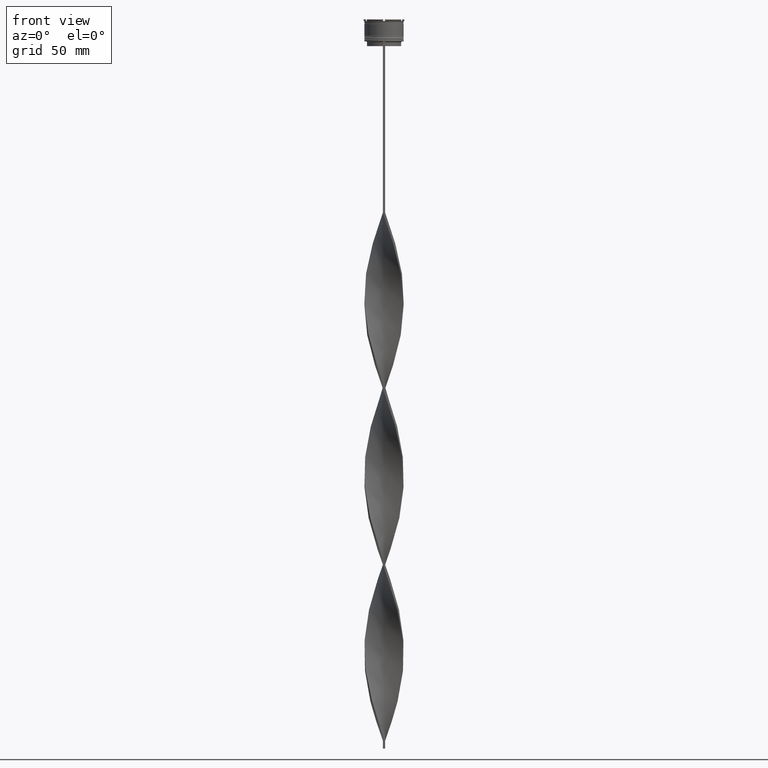
[diagram: clean part render]
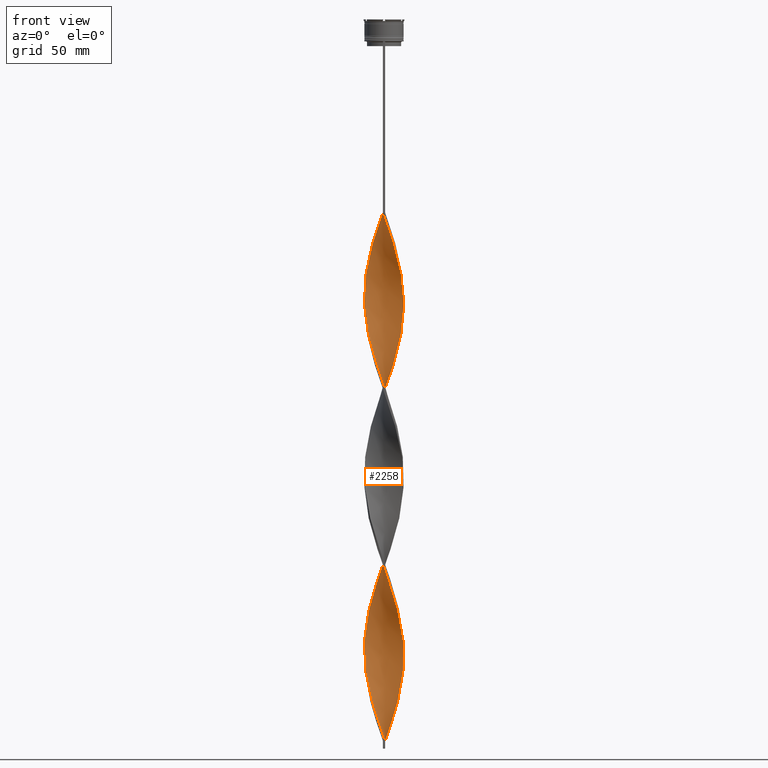
[diagram: same view with one face highlighted and labeled with its STEP entity id]
A machine part, front view. The second image highlights one B-rep face of the part: STEP entity #2258.
In plain terms, the highlighted face is a freeform B-spline surface patch.
Its self-contained STEP definition (entity closure, byte-faithful):
#5 = CARTESIAN_POINT ( 'NONE',  ( -0.1440176444849642912, -12.55364105866909874, -232.4545454545454390 ) ) ;
#24 = EDGE_CURVE ( 'NONE', #2962, #3395, #1316, .T. ) ;
#25 = CARTESIAN_POINT ( 'NONE',  ( 9.393097386316817676, -8.329727870884727992, -262.9999999999999432 ) ) ;
#33 = CARTESIAN_POINT ( 'NONE',  ( -10.48293307345756809, 6.908166116216014174, -380.0909090909090651 ) ) ;
#54 = CARTESIAN_POINT ( 'NONE',  ( -11.78236275255014576, -4.241276690728743581, -189.1818181818181870 ) ) ;
#57 = CARTESIAN_POINT ( 'NONE',  ( -9.581720387053803023, 8.112045323846697187, -268.0909090909090651 ) ) ;
#60 = CARTESIAN_POINT ( 'NONE',  ( -0.7499999999999997780, -12.50000000000000000, -123.0000000000000000 ) ) ;
#65 = CARTESIAN_POINT ( 'NONE',  ( -5.345974020927156900, -11.35936647350535367, -441.1818181818181301 ) ) ;
#80 = CARTESIAN_POINT ( 'NONE',  ( -3.398585475168563352, 12.08570484828248759, -130.6363636363636545 ) ) ;
#85 = CARTESIAN_POINT ( 'NONE',  ( -0.7499999999999997780, 12.50000000000000000, -123.0000000000000000 ) ) ;
#98 = CARTESIAN_POINT ( 'NONE',  ( 5.345974020927152459, -11.35936647350535722, -140.8181818181818130 ) ) ;
#102 = CARTESIAN_POINT ( 'NONE',  ( -12.00455592986043030, 3.674953311088231533, -390.2727272727272521 ) ) ;
#113 = CARTESIAN_POINT ( 'NONE',  ( -8.329727870884727992, -9.393097386316815900, -207.0000000000000284 ) ) ;
#121 = CARTESIAN_POINT ( 'NONE',  ( -9.393097386316817676, 8.329727870884727992, -374.9999999999999432 ) ) ;
#126 = CARTESIAN_POINT ( 'NONE',  ( -9.393097386316817676, -8.329727870884724439, -319.0000000000000000 ) ) ;
#128 = CARTESIAN_POINT ( 'NONE',  ( -12.55364105866909874, -0.1440176444849660120, -293.5454545454544473 ) ) ;
#136 = CARTESIAN_POINT ( 'NONE',  ( 8.752571355081759208, 8.955724128969263731, -209.5454545454545325 ) ) ;
#151 = CARTESIAN_POINT ( 'NONE',  ( 12.26603189480669798, 2.521301559826760297, -296.0909090909090651 ) ) ;
#155 = CARTESIAN_POINT ( 'NONE',  ( -8.752571355081753879, -8.955724128969267284, -321.5454545454545610 ) ) ;
#156 = CARTESIAN_POINT ( 'NONE',  ( 3.674953311088230645, -12.00455592986043030, -135.7272727272726911 ) ) ;
#162 = CARTESIAN_POINT ( 'NONE',  ( 11.68196120168289553, 4.510463666007690442, -194.2727272727272521 ) ) ;
#172 = CARTESIAN_POINT ( 'NONE',  ( -11.78236275255014576, -4.241276690728743581, -413.1818181818181870 ) ) ;
#176 = CARTESIAN_POINT ( 'NONE',  ( 9.938015229887191992, 7.618946993550368418, -204.4545454545454390 ) ) ;
#183 = CARTESIAN_POINT ( 'NONE',  ( 8.112045323846697187, 9.581720387053803023, -212.0909090909090935 ) ) ;
#191 = CARTESIAN_POINT ( 'NONE',  ( 3.674953311088230645, -12.00455592986043030, -135.7272727272726911 ) ) ;
#195 = CARTESIAN_POINT ( 'NONE',  ( -6.127070068571586425, -10.92114977348146354, -438.6363636363636829 ) ) ;
#196 = CARTESIAN_POINT ( 'NONE',  ( 0.7500000000000013323, 12.50000000000000000, -459.0000000000000000 ) ) ;
#200 = CARTESIAN_POINT ( 'NONE',  ( -7.618946993550368418, 9.938015229887193769, -260.4545454545454959 ) ) ;
#212 = CARTESIAN_POINT ( 'NONE',  ( 12.20496158781229035, -2.802037230306998694, -280.8181818181818699 ) ) ;
#224 = CARTESIAN_POINT ( 'NONE',  ( 12.50000000000000000, -0.7500000000000005551, -403.0000000000000000 ) ) ;
#227 = CARTESIAN_POINT ( 'NONE',  ( -2.802037230306994697, 12.20496158781229035, -245.1818181818181870 ) ) ;
#228 = CARTESIAN_POINT ( 'NONE',  ( -12.08570484828248581, 3.398585475168569570, -283.3636363636362603 ) ) ;
#235 = CARTESIAN_POINT ( 'NONE',  ( 6.908166116216016839, 10.48293307345756453, -324.0909090909090651 ) ) ;
#246 = CARTESIAN_POINT ( 'NONE',  ( 12.00455592986043030, 3.674953311088229757, -415.7272727272726911 ) ) ;
#248 = CARTESIAN_POINT ( 'NONE',  ( -10.48293307345757164, -6.908166116216012398, -313.9090909090908212 ) ) ;
#257 = CARTESIAN_POINT ( 'NONE',  ( 5.874911659039470990, -11.05883868218006505, -250.2727272727273089 ) ) ;
#263 = CARTESIAN_POINT ( 'NONE',  ( -2.521301559826765626, -12.26603189480669442, -341.9090909090909349 ) ) ;
#268 = CARTESIAN_POINT ( 'NONE',  ( -7.388950367818353904, -10.11018854729806726, -326.6363636363636260 ) ) ;
#278 = CARTESIAN_POINT ( 'NONE',  ( -6.908166116216015062, -10.48293307345756631, -212.0909090909090935 ) ) ;
#292 = CARTESIAN_POINT ( 'NONE',  ( 12.50000000000000000, -0.7500000000000005551, -403.0000000000000000 ) ) ;
#301 = CARTESIAN_POINT ( 'NONE',  ( 1.644017644484960572, -12.44635894133090126, -237.5454545454545325 ) ) ;
#307 = EDGE_LOOP ( 'NONE', ( #3531, #3303, #2238, #1678 ) ) ;
#309 = CARTESIAN_POINT ( 'NONE',  ( 10.48293307345756809, 6.908166116216014174, -425.9090909090908212 ) ) ;
#312 = CARTESIAN_POINT ( 'NONE',  ( 11.68196120168289553, 4.510463666007690442, -418.2727272727273089 ) ) ;
#338 = CARTESIAN_POINT ( 'NONE',  ( -4.241276690728745358, -11.78236275255014576, -336.8181818181818130 ) ) ;
#366 = CARTESIAN_POINT ( 'NONE',  ( 12.40536724576414684, -1.929121149525772516, -283.3636363636362603 ) ) ;
#387 = CARTESIAN_POINT ( 'NONE',  ( -12.20496158781229035, 2.802037230306999582, -168.8181818181818130 ) ) ;
#390 = CARTESIAN_POINT ( 'NONE',  ( -10.92114977348146532, -6.127070068571578432, -311.3636363636363740 ) ) ;
#396 = CARTESIAN_POINT ( 'NONE',  ( -12.55364105866909874, 0.1440176444849634030, -400.4545454545453822 ) ) ;
#408 = CARTESIAN_POINT ( 'NONE',  ( -9.938015229887191992, 7.618946993550370195, -153.5454545454545325 ) ) ;
#416 = CARTESIAN_POINT ( 'NONE',  ( -11.68196120168289553, 4.510463666007692218, -387.7272727272727479 ) ) ;
#433 = CARTESIAN_POINT ( 'NONE',  ( -4.241276690728743581, 11.78236275255014576, -133.1818181818181870 ) ) ;
#436 = CARTESIAN_POINT ( 'NONE',  ( -11.78236275255014576, 4.241276690728744470, -280.8181818181818699 ) ) ;
#460 = CARTESIAN_POINT ( 'NONE',  ( -10.92114977348146354, 6.127070068571585537, -382.6363636363636829 ) ) ;
#470 = VERTEX_POINT ( 'NONE', #4080 ) ;
#474 = CARTESIAN_POINT ( 'NONE',  ( -6.665855411790014173, 10.63865670754232795, -140.8181818181818130 ) ) ;
#480 = CARTESIAN_POINT ( 'NONE',  ( 10.11018854729807259, 7.388950367818349463, -311.3636363636363740 ) ) ;
#483 = CARTESIAN_POINT ( 'NONE',  ( -8.329727870884724439, 9.393097386316817676, -262.9999999999999432 ) ) ;
#503 = CARTESIAN_POINT ( 'NONE',  ( -10.11018854729806549, -7.388950367818355680, -423.3636363636363740 ) ) ;
#509 = CARTESIAN_POINT ( 'NONE',  ( -1.929121149525763634, 12.40536724576414862, -242.6363636363635976 ) ) ;
#516 = CARTESIAN_POINT ( 'NONE',  ( 4.241276690728743581, 11.78236275255014576, -224.8181818181818130 ) ) ;
#526 = CARTESIAN_POINT ( 'NONE',  ( 0.1440176444849632920, -12.55364105866909874, -125.5454545454545467 ) ) ;
#532 = CARTESIAN_POINT ( 'NONE',  ( -11.35936647350535722, 5.345974020927153347, -385.1818181818180733 ) ) ;
#537 = CARTESIAN_POINT ( 'NONE',  ( -6.908166116216012398, 10.48293307345756809, -257.9090909090909349 ) ) ;
#538 = CARTESIAN_POINT ( 'NONE',  ( 9.393097386316817676, 8.329727870884726215, -207.0000000000000284 ) ) ;
#546 = CARTESIAN_POINT ( 'NONE',  ( -12.55364105866909874, 0.1440176444849634030, -176.4545454545454390 ) ) ;
#550 = CARTESIAN_POINT ( 'NONE',  ( 1.929121149525766521, -12.40536724576414862, -130.6363636363636260 ) ) ;
#554 = CARTESIAN_POINT ( 'NONE',  ( -5.345974020927156900, -11.35936647350535367, -441.1818181818181301 ) ) ;
#558 = CARTESIAN_POINT ( 'NONE',  ( -6.908166116216012398, 10.48293307345756986, -257.9090909090909349 ) ) ;
#569 = CARTESIAN_POINT ( 'NONE',  ( -0.1440176444849642912, -12.55364105866909874, -232.4545454545454390 ) ) ;
#576 = CARTESIAN_POINT ( 'NONE',  ( 4.241276690728743581, 11.78236275255014576, -448.8181818181818130 ) ) ;
#581 = CARTESIAN_POINT ( 'NONE',  ( 4.241276690728743581, 11.78236275255014576, -224.8181818181818130 ) ) ;
#595 = CARTESIAN_POINT ( 'NONE',  ( -4.241276690728743581, 11.78236275255014576, -357.1818181818181301 ) ) ;
#609 = CARTESIAN_POINT ( 'NONE',  ( 4.510463666007691330, -11.68196120168289553, -362.2727272727273089 ) ) ;
#616 = CARTESIAN_POINT ( 'NONE',  ( 12.40536724576414684, -1.929121149525772516, -283.3636363636363171 ) ) ;
#624 = CARTESIAN_POINT ( 'NONE',  ( 11.78236275255014576, -4.241276690728745358, -392.8181818181818699 ) ) ;
#626 = CARTESIAN_POINT ( 'NONE',  ( 5.083967906288923366, 11.47902065681780215, -446.2727272727271952 ) ) ;
#634 = CARTESIAN_POINT ( 'NONE',  ( -1.036569397005365323, -12.47950415221662190, -229.9090909090909065 ) ) ;
#645 = CARTESIAN_POINT ( 'NONE',  ( -12.00455592986043030, -3.674953311088230645, -303.7272727272727479 ) ) ;
#658 = CARTESIAN_POINT ( 'NONE',  ( 2.802037230306999582, 12.20496158781229035, -336.8181818181818130 ) ) ;
#672 = CARTESIAN_POINT ( 'NONE',  ( 1.036569397005364879, -12.47950415221662190, -352.0909090909091219 ) ) ;
#673 = CARTESIAN_POINT ( 'NONE',  ( 7.388950367818358345, 10.11018854729806549, -438.6363636363636829 ) ) ;
#685 = CARTESIAN_POINT ( 'NONE',  ( -12.50000000000000000, -0.7499999999999990008, -403.0000000000000000 ) ) ;
#694 = CARTESIAN_POINT ( 'NONE',  ( 10.63865670754232795, -6.665855411790015950, -385.1818181818180733 ) ) ;
#697 = CARTESIAN_POINT ( 'NONE',  ( -12.47950415221662368, -1.036569397005361548, -296.0909090909090651 ) ) ;
#712 = CARTESIAN_POINT ( 'NONE',  ( -1.929121149525763634, 12.40536724576414862, -242.6363636363636260 ) ) ;
#717 = CARTESIAN_POINT ( 'NONE',  ( 1.644017644484960572, -12.44635894133090126, -237.5454545454545325 ) ) ;
#729 = CARTESIAN_POINT ( 'NONE',  ( -1.929121149525766521, -12.40536724576414862, -451.3636363636364308 ) ) ;
#744 = CARTESIAN_POINT ( 'NONE',  ( -12.55364105866909874, 0.1440176444849634030, -176.4545454545454390 ) ) ;
#748 = CARTESIAN_POINT ( 'NONE',  ( -11.68196120168289731, -4.510463666007686889, -306.2727272727272521 ) ) ;
#755 = CARTESIAN_POINT ( 'NONE',  ( -12.00455592986043030, 3.674953311088231533, -390.2727272727272521 ) ) ;
#770 = CARTESIAN_POINT ( 'NONE',  ( -12.50000000000000000, -0.7499999999999990008, -179.0000000000000000 ) ) ;
#784 = VERTEX_POINT ( 'NONE', #85 ) ;
#790 = CARTESIAN_POINT ( 'NONE',  ( 8.752571355081755655, -8.955724128969267284, -260.4545454545454959 ) ) ;
#794 = CARTESIAN_POINT ( 'NONE',  ( -12.00455592986043030, -3.674953311088230645, -303.7272727272727479 ) ) ;
#804 = CARTESIAN_POINT ( 'NONE',  ( -10.11018854729806549, -7.388950367818355680, -199.3636363636363455 ) ) ;
#807 = CARTESIAN_POINT ( 'NONE',  ( 2.802037230306998694, -12.20496158781229035, -133.1818181818181870 ) ) ;
#815 = CARTESIAN_POINT ( 'NONE',  ( -1.036569397005365323, -12.47950415221662190, -229.9090909090909065 ) ) ;
#823 = CARTESIAN_POINT ( 'NONE',  ( 10.63865670754232795, -6.665855411790015062, -161.1818181818181870 ) ) ;
#832 = CARTESIAN_POINT ( 'NONE',  ( -2.521301559826763405, 12.26603189480669620, -128.0909090909090935 ) ) ;
#838 = CARTESIAN_POINT ( 'NONE',  ( 4.510463666007692218, 11.68196120168289553, -331.7272727272727479 ) ) ;
#839 = CARTESIAN_POINT ( 'NONE',  ( 0.7499999999999983347, -12.50000000000000000, -459.0000000000000000 ) ) ;
#841 = CARTESIAN_POINT ( 'NONE',  ( -10.63865670754232440, 6.665855411790017726, -273.1818181818181870 ) ) ;
#853 = CARTESIAN_POINT ( 'NONE',  ( -11.47902065681779860, -5.083967906288924254, -191.7272727272727479 ) ) ;
#859 = CARTESIAN_POINT ( 'NONE',  ( 1.036569397005367099, 12.47950415221662368, -341.9090909090909349 ) ) ;
#862 = CARTESIAN_POINT ( 'NONE',  ( 11.47902065681779860, -5.083967906288926031, -166.2727272727272236 ) ) ;
#866 = CARTESIAN_POINT ( 'NONE',  ( 9.938015229887191992, 7.618946993550368418, -204.4545454545454390 ) ) ;
#882 = CARTESIAN_POINT ( 'NONE',  ( 11.78236275255014576, 4.241276690728739140, -301.1818181818182438 ) ) ;
#887 = CARTESIAN_POINT ( 'NONE',  ( -11.05883868218006505, 5.874911659039469214, -275.7272727272726911 ) ) ;
#894 = CARTESIAN_POINT ( 'NONE',  ( 10.48293307345756809, 6.908166116216014174, -201.9090909090909065 ) ) ;
#900 = CARTESIAN_POINT ( 'NONE',  ( -12.00455592986043030, 3.674953311088231533, -166.2727272727272521 ) ) ;
#909 = CARTESIAN_POINT ( 'NONE',  ( -10.63865670754232617, -6.665855411790015950, -420.8181818181818130 ) ) ;
#913 = CARTESIAN_POINT ( 'NONE',  ( 5.083967906288923366, 11.47902065681780215, -222.2727272727272805 ) ) ;
#923 = CARTESIAN_POINT ( 'NONE',  ( 10.92114977348146532, -6.127070068571582873, -270.6363636363636829 ) ) ;
#927 = CARTESIAN_POINT ( 'NONE',  ( 7.618946993550366642, 9.938015229887193769, -321.5454545454545610 ) ) ;
#932 = CARTESIAN_POINT ( 'NONE',  ( 6.127070068571584649, -10.92114977348146354, -143.3636363636363740 ) ) ;
#941 = CARTESIAN_POINT ( 'NONE',  ( 1.036569397005367099, 12.47950415221662368, -341.9090909090909349 ) ) ;
#953 = CARTESIAN_POINT ( 'NONE',  ( 12.40536724576414862, 1.929121149525767409, -410.6363636363636260 ) ) ;
#966 = CARTESIAN_POINT ( 'NONE',  ( 11.05883868218006683, 5.874911659039464773, -306.2727272727272521 ) ) ;
#976 = CARTESIAN_POINT ( 'NONE',  ( 9.938015229887191992, 7.618946993550368418, -428.4545454545454959 ) ) ;
#980 = CARTESIAN_POINT ( 'NONE',  ( 11.05883868218006505, -5.874911659039470102, -387.7272727272727479 ) ) ;
#989 = CARTESIAN_POINT ( 'NONE',  ( 5.083967906288926031, -11.47902065681779860, -247.7272727272727195 ) ) ;
#995 = CARTESIAN_POINT ( 'NONE',  ( -0.1440176444849612103, 12.55364105866909874, -237.5454545454545325 ) ) ;
#1000 = CARTESIAN_POINT ( 'NONE',  ( 8.329727870884727992, -9.393097386316817676, -374.9999999999999432 ) ) ;
#1009 = CARTESIAN_POINT ( 'NONE',  ( -6.127070068571586425, -10.92114977348146354, -214.6363636363636260 ) ) ;
#1018 = CARTESIAN_POINT ( 'NONE',  ( 3.398585475168563796, 12.08570484828248759, -451.3636363636364308 ) ) ;
#1021 = CARTESIAN_POINT ( 'NONE',  ( 9.938015229887191992, 7.618946993550368418, -428.4545454545454959 ) ) ;
#1034 = CARTESIAN_POINT ( 'NONE',  ( -11.05883868218006505, -5.874911659039468326, -418.2727272727273089 ) ) ;
#1048 = CARTESIAN_POINT ( 'NONE',  ( 5.345974020927152459, -11.35936647350535722, -364.8181818181818130 ) ) ;
#1057 = CARTESIAN_POINT ( 'NONE',  ( -4.510463666007690442, -11.68196120168289553, -443.7272727272727479 ) ) ;
#1071 = CARTESIAN_POINT ( 'NONE',  ( 0.7499999999999983347, -12.50000000000000000, -235.0000000000000000 ) ) ;
#1091 = CARTESIAN_POINT ( 'NONE',  ( 6.665855411790015950, -10.63865670754232795, -252.8181818181817562 ) ) ;
#1101 = CARTESIAN_POINT ( 'NONE',  ( -12.20496158781229035, 2.802037230306999582, -392.8181818181818699 ) ) ;
#1117 = CARTESIAN_POINT ( 'NONE',  ( -11.05883868218006505, -5.874911659039468326, -194.2727272727272521 ) ) ;
#1140 = CARTESIAN_POINT ( 'NONE',  ( -2.521301559826763405, 12.26603189480669620, -128.0909090909090935 ) ) ;
#1143 = CARTESIAN_POINT ( 'NONE',  ( -8.955724128969263731, 8.752571355081759208, -265.5454545454545041 ) ) ;
#1144 = CARTESIAN_POINT ( 'NONE',  ( 1.929121149525766521, -12.40536724576414862, -130.6363636363636545 ) ) ;
#1163 = CARTESIAN_POINT ( 'NONE',  ( -8.329727870884727992, -9.393097386316815900, -207.0000000000000284 ) ) ;
#1178 = CARTESIAN_POINT ( 'NONE',  ( -9.938015229887191992, 7.618946993550370195, -153.5454545454545325 ) ) ;
#1187 = CARTESIAN_POINT ( 'NONE',  ( 1.929121149525773404, 12.40536724576414684, -339.3636363636362603 ) ) ;
#1192 = CARTESIAN_POINT ( 'NONE',  ( -9.581720387053803023, 8.112045323846698963, -268.0909090909090082 ) ) ;
#1214 = CARTESIAN_POINT ( 'NONE',  ( 2.802037230306999582, 12.20496158781229035, -336.8181818181818130 ) ) ;
#1218 = CARTESIAN_POINT ( 'NONE',  ( 10.92114977348146354, 6.127070068571584649, -199.3636363636363455 ) ) ;
#1224 = CARTESIAN_POINT ( 'NONE',  ( 12.20496158781229035, 2.802037230306998694, -189.1818181818181870 ) ) ;
#1236 = CARTESIAN_POINT ( 'NONE',  ( 12.08570484828248759, 3.398585475168565129, -298.6363636363635692 ) ) ;
#1240 = CARTESIAN_POINT ( 'NONE',  ( 10.63865670754232795, -6.665855411790015950, -161.1818181818181870 ) ) ;
#1251 = CARTESIAN_POINT ( 'NONE',  ( -8.112045323846695410, 9.581720387053804799, -145.9090909090909065 ) ) ;
#1258 = CARTESIAN_POINT ( 'NONE',  ( -12.08570484828248581, 3.398585475168570014, -283.3636363636363171 ) ) ;
#1261 = CARTESIAN_POINT ( 'NONE',  ( -8.112045323846697187, 9.581720387053804799, -369.9090909090908781 ) ) ;
#1268 = CARTESIAN_POINT ( 'NONE',  ( 6.908166116216012398, -10.48293307345756986, -145.9090909090909065 ) ) ;
#1279 = CARTESIAN_POINT ( 'NONE',  ( -11.78236275255014576, -4.241276690728743581, -189.1818181818181870 ) ) ;
#1287 = CARTESIAN_POINT ( 'NONE',  ( 9.581720387053806576, 8.112045323846697187, -313.9090909090908212 ) ) ;
#1291 = CARTESIAN_POINT ( 'NONE',  ( -8.955724128969263731, 8.752571355081759208, -265.5454545454545041 ) ) ;
#1302 = CARTESIAN_POINT ( 'NONE',  ( 7.618946993550366642, 9.938015229887193769, -321.5454545454545610 ) ) ;
#1312 = CARTESIAN_POINT ( 'NONE',  ( 11.78236275255014576, -4.241276690728745358, -392.8181818181818699 ) ) ;
#1316 =( BOUNDED_CURVE ( )  B_SPLINE_CURVE ( 2, ( #3726, #526, #2336, #550, #807, #191, #2242, #98, #1324, #3982, #4501, #2809, #3975, #1850, #2951, #823, #2781, #1332, #4180, #4156, #4204, #3843, #4425, #4098, #2653, #3393, #1224, #2674, #162, #4071, #1602, #894, #866, #3032, #136, #183, #1581, #2329, #4447, #3742, #516, #2301, #3718, #1957, #1745, #995, #4267, #712, #227, #2148, #2520, #2251, #1897, #537, #1921, #3269, #1143, #57, #2573, #3998, #2221, #3638, #436, #1258, #2574, #3999, #2199, #1470, #697, #2521, #3944, #794, #748, #2177, #390, #1824, #1922, #126, #155, #3023, #1430, #4272, #3916, #2142, #3561, #1799, #263, #1698, #3129, #1357, #672, #4605, #2123, #2833, #2798, #3932, #3985, #2759, #1681, #1701, #2800, #3092, #3865, #2409, #4533, #3515, #624, #2755, #2056, #3430, #224, #3800, #3775, #3451, #3111, #246, #2443, #1330, #4178, #309, #976, #4154, #4222, #2101, #2424, #2779, #2014, #3468, #576, #1018, #4133, #4514, #4582 ),
 .UNSPECIFIED., .F., .T. ) 
 B_SPLINE_CURVE_WITH_KNOTS ( ( 3, 2, 2, 2, 2, 2, 2, 2, 2, 2, 2, 2, 2, 2, 2, 2, 2, 2, 2, 2, 2, 2, 2, 2, 2, 2, 2, 2, 2, 2, 2, 2, 2, 2, 2, 2, 2, 2, 2, 2, 2, 2, 2, 2, 2, 2, 2, 2, 2, 2, 2, 2, 2, 2, 2, 2, 2, 2, 2, 2, 2, 2, 2, 2, 2, 2, 3 ),
 ( 0.000000000000000000, 0.01136363636363636222, 0.02272727272727272443, 0.03409090909090908839, 0.04545454545454544887, 0.05681818181818181629, 0.06818181818181817677, 0.07954545454545454419, 0.09090909090909089774, 0.1022727272727272790, 0.1136363636363636326, 0.1250000000000000000, 0.1363636363636363535, 0.1477272727272727348, 0.1590909090909090884, 0.1704545454545454419, 0.1818181818181817955, 0.1931818181818182045, 0.2045454545454545581, 0.2159090909090909116, 0.2272727272727272652, 0.2386363636363636465, 0.2500000000000000000, 0.2613636363636363535, 0.2727272727272727071, 0.2840909090909091161, 0.2954545454545454697, 0.3068181818181818232, 0.3181818181818181768, 0.3295454545454545303, 0.3409090909090908839, 0.3522727272727272929, 0.3636363636363635909, 0.3750000000000000000, 0.3863636363636364091, 0.3977272727272727071, 0.4090909090909091161, 0.4204545454545454697, 0.4318181818181818232, 0.4431818181818181768, 0.4545454545454545303, 0.4659090909090908839, 0.4772727272727272929, 0.4886363636363635909, 0.5000000000000000000, 0.5113636363636363535, 0.5227272727272727071, 0.5340909090909090606, 0.5454545454545454142, 0.5568181818181817677, 0.5681818181818182323, 0.5795454545454545858, 0.5909090909090909394, 0.6022727272727272929, 0.6136363636363636465, 0.6250000000000000000, 0.6363636363636363535, 0.6477272727272727071, 0.6590909090909090606, 0.6704545454545454142, 0.6818181818181817677, 0.6931818181818182323, 0.7045454545454545858, 0.7159090909090909394, 0.7272727272727271819, 0.7386363636363636465, 0.7500000000000000000 ),
 .UNSPECIFIED. ) 
 CURVE ( )  GEOMETRIC_REPRESENTATION_ITEM ( )  RATIONAL_B_SPLINE_CURVE ( ( 1.000000000000000000, 0.9974521146102535152, 1.000000000000000000, 0.9974521146102535152, 1.000000000000000000, 0.9974521146102535152, 1.000000000000000000, 0.9974521146102535152, 1.000000000000000000, 0.9974521146102535152, 1.000000000000000000, 0.9974521146102535152, 1.000000000000000000, 0.9974521146102535152, 1.000000000000000000, 0.9974521146102535152, 1.000000000000000000, 0.9974521146102535152, 1.000000000000000000, 0.9974521146102535152, 1.000000000000000000, 0.9974521146102535152, 1.000000000000000000, 0.9974521146102535152, 1.000000000000000000, 0.9974521146102535152, 1.000000000000000000, 0.9974521146102535152, 1.000000000000000000, 0.9974521146102535152, 1.000000000000000000, 0.9974521146102535152, 1.000000000000000000, 0.9974521146102535152, 1.000000000000000000, 0.9974521146102535152, 1.000000000000000000, 0.9974521146102535152, 1.000000000000000000, 0.9974521146102535152, 1.000000000000000000, 0.9974521146102535152, 1.000000000000000000, 0.9974521146102535152, 1.000000000000000000, 0.9974521146102535152, 1.000000000000000000, 0.9974521146102535152, 1.000000000000000000, 0.9974521146102535152, 1.000000000000000000, 0.9974521146102535152, 1.000000000000000000, 0.9974521146102535152, 1.000000000000000000, 0.9974521146102535152, 1.000000000000000000, 0.9974521146102535152, 1.000000000000000000, 0.9974521146102535152, 1.000000000000000000, 0.9974521146102535152, 1.000000000000000000, 0.9974521146102535152, 1.000000000000000000, 0.9974521146102535152, 1.000000000000000000, 0.9974521146102535152, 1.000000000000000000, 0.9974521146102535152, 1.000000000000000000, 0.9974521146102535152, 1.000000000000000000, 0.9974521146102535152, 1.000000000000000000, 0.9974521146102535152, 1.000000000000000000, 0.9974521146102535152, 1.000000000000000000, 0.9974521146102535152, 1.000000000000000000, 0.9974521146102535152, 1.000000000000000000, 0.9974521146102535152, 1.000000000000000000, 0.9974521146102535152, 1.000000000000000000, 0.9974521146102535152, 1.000000000000000000, 0.9974521146102535152, 1.000000000000000000, 0.9974521146102535152, 1.000000000000000000, 0.9974521146102535152, 1.000000000000000000, 0.9974521146102535152, 1.000000000000000000, 0.9974521146102535152, 1.000000000000000000, 0.9974521146102535152, 1.000000000000000000, 0.9974521146102535152, 1.000000000000000000, 0.9974521146102535152, 1.000000000000000000, 0.9974521146102535152, 1.000000000000000000, 0.9974521146102535152, 1.000000000000000000, 0.9974521146102535152, 1.000000000000000000, 0.9974521146102535152, 1.000000000000000000, 0.9974521146102535152, 1.000000000000000000, 0.9974521146102535152, 1.000000000000000000, 0.9974521146102535152, 1.000000000000000000, 0.9974521146102535152, 1.000000000000000000, 0.9974521146102535152, 1.000000000000000000, 0.9974521146102535152, 1.000000000000000000, 0.9974521146102535152, 1.000000000000000000, 0.9974521146102535152, 1.000000000000000000, 0.9974521146102535152, 1.000000000000000000, 0.9974521146102535152, 1.000000000000000000 ) ) 
 REPRESENTATION_ITEM ( '' )  );
#1321 = CARTESIAN_POINT ( 'NONE',  ( -8.112045323846695410, 9.581720387053804799, -369.9090909090909349 ) ) ;
#1324 = CARTESIAN_POINT ( 'NONE',  ( 6.127070068571584649, -10.92114977348146354, -143.3636363636363740 ) ) ;
#1330 = CARTESIAN_POINT ( 'NONE',  ( 11.35936647350535544, 5.345974020927153347, -420.8181818181818130 ) ) ;
#1332 = CARTESIAN_POINT ( 'NONE',  ( 11.47902065681779860, -5.083967906288926031, -166.2727272727272521 ) ) ;
#1336 = CARTESIAN_POINT ( 'NONE',  ( 12.20496158781229035, 2.802037230306998694, -413.1818181818181870 ) ) ;
#1348 = CARTESIAN_POINT ( 'NONE',  ( -1.929121149525766521, -12.40536724576414862, -227.3636363636363455 ) ) ;
#1357 = CARTESIAN_POINT ( 'NONE',  ( 0.1440176444849632920, -12.55364105866909874, -349.5454545454545610 ) ) ;
#1362 = CARTESIAN_POINT ( 'NONE',  ( -5.083967906288929584, -11.47902065681779682, -334.2727272727272521 ) ) ;
#1373 = CARTESIAN_POINT ( 'NONE',  ( -2.521301559826763405, 12.26603189480669620, -352.0909090909091219 ) ) ;
#1385 = CARTESIAN_POINT ( 'NONE',  ( 9.393097386316817676, 8.329727870884726215, -430.9999999999999432 ) ) ;
#1394 = CARTESIAN_POINT ( 'NONE',  ( 9.393097386316817676, -8.329727870884727992, -262.9999999999999432 ) ) ;
#1404 = CARTESIAN_POINT ( 'NONE',  ( 12.00455592986043030, 3.674953311088229757, -415.7272727272726911 ) ) ;
#1430 = CARTESIAN_POINT ( 'NONE',  ( -7.388950367818353904, -10.11018854729806726, -326.6363636363636260 ) ) ;
#1431 = CARTESIAN_POINT ( 'NONE',  ( -12.26603189480669798, -2.521301559826762073, -184.0909090909090935 ) ) ;
#1450 = CARTESIAN_POINT ( 'NONE',  ( -6.127070068571586425, -10.92114977348146354, -214.6363636363636260 ) ) ;
#1459 = CARTESIAN_POINT ( 'NONE',  ( -9.938015229887191992, 7.618946993550370195, -377.5454545454545610 ) ) ;
#1467 = CARTESIAN_POINT ( 'NONE',  ( 5.874911659039470990, -11.05883868218006505, -250.2727272727273089 ) ) ;
#1470 = CARTESIAN_POINT ( 'NONE',  ( -12.55364105866909874, -0.1440176444849660120, -293.5454545454545041 ) ) ;
#1497 = CARTESIAN_POINT ( 'NONE',  ( -3.674953311088228869, -12.00455592986043030, -222.2727272727272805 ) ) ;
#1501 = CARTESIAN_POINT ( 'NONE',  ( 0.1440176444849632920, -12.55364105866909874, -125.5454545454545467 ) ) ;
#1519 = CARTESIAN_POINT ( 'NONE',  ( -5.345974020927156900, -11.35936647350535367, -217.1818181818181586 ) ) ;
#1533 = CARTESIAN_POINT ( 'NONE',  ( -0.7499999999999997780, 12.50000000000000000, -123.0000000000000000 ) ) ;
#1542 = CARTESIAN_POINT ( 'NONE',  ( -12.40536724576414862, 1.929121149525765411, -395.3636363636362603 ) ) ;
#1557 = CARTESIAN_POINT ( 'NONE',  ( -7.618946993550371971, -9.938015229887190216, -209.5454545454545325 ) ) ;
#1568 = CARTESIAN_POINT ( 'NONE',  ( -7.618946993550371971, -9.938015229887190216, -433.5454545454545610 ) ) ;
#1573 = CARTESIAN_POINT ( 'NONE',  ( -3.674953311088231533, 12.00455592986043030, -247.7272727272726911 ) ) ;
#1581 = CARTESIAN_POINT ( 'NONE',  ( 7.388950367818358345, 10.11018854729806549, -214.6363636363636260 ) ) ;
#1593 = CARTESIAN_POINT ( 'NONE',  ( 11.47902065681779860, 5.083967906288924254, -303.7272727272727479 ) ) ;
#1597 = CARTESIAN_POINT ( 'NONE',  ( 8.955724128969265507, -8.752571355081757432, -153.5454545454545325 ) ) ;
#1602 = CARTESIAN_POINT ( 'NONE',  ( 10.92114977348146354, 6.127070068571584649, -199.3636363636363455 ) ) ;
#1610 = CARTESIAN_POINT ( 'NONE',  ( -7.388950367818355680, 10.11018854729806726, -367.3636363636363740 ) ) ;
#1613 = CARTESIAN_POINT ( 'NONE',  ( 3.398585475168563352, 12.08570484828248759, -227.3636363636363171 ) ) ;
#1625 = CARTESIAN_POINT ( 'NONE',  ( -3.398585475168563796, 12.08570484828248759, -130.6363636363636260 ) ) ;
#1633 = CARTESIAN_POINT ( 'NONE',  ( -4.510463666007690442, -11.68196120168289553, -443.7272727272727479 ) ) ;
#1639 = CARTESIAN_POINT ( 'NONE',  ( 5.345974020927152459, -11.35936647350535722, -140.8181818181818130 ) ) ;
#1653 = CARTESIAN_POINT ( 'NONE',  ( 6.127070068571582873, 10.92114977348146354, -326.6363636363636260 ) ) ;
#1663 = CARTESIAN_POINT ( 'NONE',  ( -12.44635894133090126, 1.644017644484958796, -288.4545454545454390 ) ) ;
#1672 = CARTESIAN_POINT ( 'NONE',  ( 2.521301559826761185, -12.26603189480669798, -240.0909090909090651 ) ) ;
#1678 = ORIENTED_EDGE ( 'NONE', *, *, #24, .F. ) ;
#1681 = CARTESIAN_POINT ( 'NONE',  ( 7.618946993550370195, -9.938015229887191992, -372.4545454545454959 ) ) ;
#1684 = CARTESIAN_POINT ( 'NONE',  ( 12.44635894133090126, -1.644017644484962792, -400.4545454545453822 ) ) ;
#1693 = CARTESIAN_POINT ( 'NONE',  ( 6.665855411790015062, -10.63865670754232795, -252.8181818181817846 ) ) ;
#1698 = CARTESIAN_POINT ( 'NONE',  ( -1.644017644484959684, -12.44635894133090126, -344.4545454545453822 ) ) ;
#1701 = CARTESIAN_POINT ( 'NONE',  ( 8.329727870884727992, -9.393097386316817676, -374.9999999999999432 ) ) ;
#1706 = CARTESIAN_POINT ( 'NONE',  ( -8.112045323846700740, -9.581720387053801247, -324.0909090909090082 ) ) ;
#1718 = CARTESIAN_POINT ( 'NONE',  ( 8.112045323846695410, -9.581720387053804799, -257.9090909090909349 ) ) ;
#1729 = CARTESIAN_POINT ( 'NONE',  ( 11.35936647350535544, 5.345974020927153347, -420.8181818181818130 ) ) ;
#1739 = CARTESIAN_POINT ( 'NONE',  ( 4.241276690728740029, -11.78236275255014576, -245.1818181818181870 ) ) ;
#1745 = CARTESIAN_POINT ( 'NONE',  ( 0.7500000000000013323, 12.50000000000000000, -235.0000000000000000 ) ) ;
#1751 = CARTESIAN_POINT ( 'NONE',  ( 2.521301559826763850, 12.26603189480669620, -453.9090909090909349 ) ) ;
#1762 = CARTESIAN_POINT ( 'NONE',  ( -12.08570484828248759, -3.398585475168564685, -410.6363636363635692 ) ) ;
#1772 = CARTESIAN_POINT ( 'NONE',  ( 11.68196120168289553, -4.510463666007691330, -275.7272727272726911 ) ) ;
#1784 = CARTESIAN_POINT ( 'NONE',  ( 0.7499999999999983347, -12.50000000000000000, -459.0000000000000000 ) ) ;
#1799 = CARTESIAN_POINT ( 'NONE',  ( -3.398585475168570902, -12.08570484828248581, -339.3636363636363171 ) ) ;
#1800 = CARTESIAN_POINT ( 'NONE',  ( -12.40536724576414862, 1.929121149525765411, -171.3636363636363171 ) ) ;
#1819 = EDGE_CURVE ( 'NONE', #784, #470, #2096, .T. ) ;
#1821 = CARTESIAN_POINT ( 'NONE',  ( -8.955724128969265507, -8.752571355081755655, -204.4545454545454390 ) ) ;
#1824 = CARTESIAN_POINT ( 'NONE',  ( -10.48293307345756986, -6.908166116216012398, -313.9090909090908781 ) ) ;
#1829 = CARTESIAN_POINT ( 'NONE',  ( -11.35936647350535722, 5.345974020927153347, -385.1818181818181301 ) ) ;
#1842 = CARTESIAN_POINT ( 'NONE',  ( 2.521301559826761185, -12.26603189480669798, -240.0909090909090651 ) ) ;
#1848 = FACE_OUTER_BOUND ( 'NONE', #307, .T. ) ;
#1850 = CARTESIAN_POINT ( 'NONE',  ( 9.581720387053804799, -8.112045323846697187, -156.0909090909090935 ) ) ;
#1853 = CARTESIAN_POINT ( 'NONE',  ( -0.1440176444849642912, -12.55364105866909874, -456.4545454545454390 ) ) ;
#1872 = CARTESIAN_POINT ( 'NONE',  ( -9.393097386316817676, 8.329727870884727992, -150.9999999999999432 ) ) ;
#1894 = CARTESIAN_POINT ( 'NONE',  ( 12.55364105866909874, -0.1440176444849594894, -288.4545454545454390 ) ) ;
#1897 = CARTESIAN_POINT ( 'NONE',  ( -6.127070068571584649, 10.92114977348146354, -255.3636363636363455 ) ) ;
#1910 = CARTESIAN_POINT ( 'NONE',  ( -12.50000000000000000, -0.7499999999999990008, -179.0000000000000000 ) ) ;
#1917 = CARTESIAN_POINT ( 'NONE',  ( -9.581720387053804799, -8.112045323846698963, -425.9090909090908781 ) ) ;
#1921 = CARTESIAN_POINT ( 'NONE',  ( -7.618946993550368418, 9.938015229887193769, -260.4545454545454959 ) ) ;
#1922 = CARTESIAN_POINT ( 'NONE',  ( -9.938015229887190216, -7.618946993550371971, -316.4545454545454390 ) ) ;
#1923 = CARTESIAN_POINT ( 'NONE',  ( 12.00455592986043030, 3.674953311088229757, -191.7272727272727479 ) ) ;
#1935 = CARTESIAN_POINT ( 'NONE',  ( -11.35936647350535722, 5.345974020927153347, -161.1818181818181870 ) ) ;
#1946 = CARTESIAN_POINT ( 'NONE',  ( 8.329727870884727992, 9.393097386316814124, -319.0000000000000000 ) ) ;
#1951 = CARTESIAN_POINT ( 'NONE',  ( -6.127070068571584649, 10.92114977348146354, -255.3636363636363455 ) ) ;
#1957 = CARTESIAN_POINT ( 'NONE',  ( 1.644017644484963681, 12.44635894133090126, -232.4545454545454390 ) ) ;
#1968 = CARTESIAN_POINT ( 'NONE',  ( -12.44635894133090126, -1.644017644484961460, -405.5454545454545610 ) ) ;
#1972 = CARTESIAN_POINT ( 'NONE',  ( 12.44635894133090126, -1.644017644484962792, -176.4545454545454390 ) ) ;
#1982 = CARTESIAN_POINT ( 'NONE',  ( -12.44635894133090126, -1.644017644484961460, -181.5454545454545041 ) ) ;
#1989 = CARTESIAN_POINT ( 'NONE',  ( 10.63865670754232795, 6.665855411790015062, -308.8181818181817562 ) ) ;
#1993 = CARTESIAN_POINT ( 'NONE',  ( 12.50000000000000000, -0.7500000000000005551, -179.0000000000000000 ) ) ;
#1994 = CARTESIAN_POINT ( 'NONE',  ( 0.7500000000000013323, 12.50000000000000000, -459.0000000000000000 ) ) ;
#2003 = CARTESIAN_POINT ( 'NONE',  ( 7.388950367818355680, -10.11018854729806726, -255.3636363636363455 ) ) ;
#2014 = CARTESIAN_POINT ( 'NONE',  ( 5.874911659039468326, 11.05883868218006505, -443.7272727272727479 ) ) ;
#2017 = CARTESIAN_POINT ( 'NONE',  ( -2.802037230306994697, 12.20496158781229035, -245.1818181818181870 ) ) ;
#2030 = CARTESIAN_POINT ( 'NONE',  ( -7.388950367818355680, 10.11018854729806726, -367.3636363636363740 ) ) ;
#2041 = CARTESIAN_POINT ( 'NONE',  ( 2.802037230306998694, -12.20496158781229035, -357.1818181818181301 ) ) ;
#2048 = CARTESIAN_POINT ( 'NONE',  ( 12.50000000000000000, 0.7499999999999975575, -291.0000000000000568 ) ) ;
#2056 = CARTESIAN_POINT ( 'NONE',  ( 12.26603189480669620, -2.521301559826762961, -397.9090909090909349 ) ) ;
#2058 = CARTESIAN_POINT ( 'NONE',  ( 4.241276690728743581, 11.78236275255014576, -448.8181818181818130 ) ) ;
#2062 = CARTESIAN_POINT ( 'NONE',  ( -0.7499999999999997780, -12.50000000000000000, -123.0000000000000000 ) ) ;
#2066 = CARTESIAN_POINT ( 'NONE',  ( 5.345974020927156900, 11.35936647350535367, -329.1818181818181301 ) ) ;
#2078 = CARTESIAN_POINT ( 'NONE',  ( -11.35936647350535722, -5.345974020927152459, -308.8181818181817562 ) ) ;
#2090 = CARTESIAN_POINT ( 'NONE',  ( -5.874911659039469214, 11.05883868218006505, -362.2727272727273089 ) ) ;
#2096 =( BOUNDED_CURVE ( )  B_SPLINE_CURVE ( 2, ( #1533, #3036, #832, #1625, #2612, #3722, #3352, #474, #4431, #1251, #2961, #2307, #1178, #3056, #4034, #1935, #4103, #900, #2333, #3700, #3747, #546, #1910, #1982, #4479, #2285, #1279, #853, #2707, #3327, #804, #2265, #3679, #113, #1557, #278, #1009, #4194, #3507, #3768, #2727, #1348, #634, #569, #2354, #301, #1672, #3815, #1739, #989, #257, #1693, #2003, #1718, #3103, #1394, #3419, #2791, #923, #3443, #2434, #3172, #212, #616, #3460, #4547, #2048, #2400, #3855, #4147, #4596, #3123, #966, #4125, #2771, #2417, #3832, #4504, #1302, #235, #1653, #2066, #3081, #3149, #658, #3479, #941, #2373, #3788, #4572, #1373, #4526, #595, #4214, #2090, #2745, #2030, #1321, #4168, #2840, #1459, #33, #3212, #1829, #416, #755, #1101, #3576, #2204, #396, #685, #2883, #2485, #1762, #4301, #2531, #1034, #4260, #4236, #2554, #3952, #3189, #2863, #3251, #2181, #65, #1057, #4617, #4282, #729, #4643, #1853, #1784 ),
 .UNSPECIFIED., .F., .T. ) 
 B_SPLINE_CURVE_WITH_KNOTS ( ( 3, 2, 2, 2, 2, 2, 2, 2, 2, 2, 2, 2, 2, 2, 2, 2, 2, 2, 2, 2, 2, 2, 2, 2, 2, 2, 2, 2, 2, 2, 2, 2, 2, 2, 2, 2, 2, 2, 2, 2, 2, 2, 2, 2, 2, 2, 2, 2, 2, 2, 2, 2, 2, 2, 2, 2, 2, 2, 2, 2, 2, 2, 2, 2, 2, 2, 3 ),
 ( 0.000000000000000000, 0.01136363636363636222, 0.02272727272727272443, 0.03409090909090908839, 0.04545454545454544887, 0.05681818181818181629, 0.06818181818181817677, 0.07954545454545454419, 0.09090909090909089774, 0.1022727272727272790, 0.1136363636363636326, 0.1250000000000000000, 0.1363636363636363535, 0.1477272727272727348, 0.1590909090909090884, 0.1704545454545454419, 0.1818181818181817955, 0.1931818181818182045, 0.2045454545454545581, 0.2159090909090909116, 0.2272727272727272652, 0.2386363636363636465, 0.2500000000000000000, 0.2613636363636363535, 0.2727272727272727071, 0.2840909090909091161, 0.2954545454545454697, 0.3068181818181818232, 0.3181818181818181768, 0.3295454545454545303, 0.3409090909090908839, 0.3522727272727272929, 0.3636363636363635909, 0.3750000000000000000, 0.3863636363636364091, 0.3977272727272727071, 0.4090909090909091161, 0.4204545454545454697, 0.4318181818181818232, 0.4431818181818181768, 0.4545454545454545303, 0.4659090909090908839, 0.4772727272727272929, 0.4886363636363635909, 0.5000000000000000000, 0.5113636363636363535, 0.5227272727272727071, 0.5340909090909090606, 0.5454545454545454142, 0.5568181818181817677, 0.5681818181818182323, 0.5795454545454545858, 0.5909090909090909394, 0.6022727272727272929, 0.6136363636363636465, 0.6250000000000000000, 0.6363636363636363535, 0.6477272727272727071, 0.6590909090909090606, 0.6704545454545454142, 0.6818181818181817677, 0.6931818181818182323, 0.7045454545454545858, 0.7159090909090909394, 0.7272727272727271819, 0.7386363636363636465, 0.7500000000000000000 ),
 .UNSPECIFIED. ) 
 CURVE ( )  GEOMETRIC_REPRESENTATION_ITEM ( )  RATIONAL_B_SPLINE_CURVE ( ( 1.000000000000000000, 0.9974521146102535152, 1.000000000000000000, 0.9974521146102535152, 1.000000000000000000, 0.9974521146102535152, 1.000000000000000000, 0.9974521146102535152, 1.000000000000000000, 0.9974521146102535152, 1.000000000000000000, 0.9974521146102535152, 1.000000000000000000, 0.9974521146102535152, 1.000000000000000000, 0.9974521146102535152, 1.000000000000000000, 0.9974521146102535152, 1.000000000000000000, 0.9974521146102535152, 1.000000000000000000, 0.9974521146102535152, 1.000000000000000000, 0.9974521146102535152, 1.000000000000000000, 0.9974521146102535152, 1.000000000000000000, 0.9974521146102535152, 1.000000000000000000, 0.9974521146102535152, 1.000000000000000000, 0.9974521146102535152, 1.000000000000000000, 0.9974521146102535152, 1.000000000000000000, 0.9974521146102535152, 1.000000000000000000, 0.9974521146102535152, 1.000000000000000000, 0.9974521146102535152, 1.000000000000000000, 0.9974521146102535152, 1.000000000000000000, 0.9974521146102535152, 1.000000000000000000, 0.9974521146102535152, 1.000000000000000000, 0.9974521146102535152, 1.000000000000000000, 0.9974521146102535152, 1.000000000000000000, 0.9974521146102535152, 1.000000000000000000, 0.9974521146102535152, 1.000000000000000000, 0.9974521146102535152, 1.000000000000000000, 0.9974521146102535152, 1.000000000000000000, 0.9974521146102535152, 1.000000000000000000, 0.9974521146102535152, 1.000000000000000000, 0.9974521146102535152, 1.000000000000000000, 0.9974521146102535152, 1.000000000000000000, 0.9974521146102535152, 1.000000000000000000, 0.9974521146102535152, 1.000000000000000000, 0.9974521146102535152, 1.000000000000000000, 0.9974521146102535152, 1.000000000000000000, 0.9974521146102535152, 1.000000000000000000, 0.9974521146102535152, 1.000000000000000000, 0.9974521146102535152, 1.000000000000000000, 0.9974521146102535152, 1.000000000000000000, 0.9974521146102535152, 1.000000000000000000, 0.9974521146102535152, 1.000000000000000000, 0.9974521146102535152, 1.000000000000000000, 0.9974521146102535152, 1.000000000000000000, 0.9974521146102535152, 1.000000000000000000, 0.9974521146102535152, 1.000000000000000000, 0.9974521146102535152, 1.000000000000000000, 0.9974521146102535152, 1.000000000000000000, 0.9974521146102535152, 1.000000000000000000, 0.9974521146102535152, 1.000000000000000000, 0.9974521146102535152, 1.000000000000000000, 0.9974521146102535152, 1.000000000000000000, 0.9974521146102535152, 1.000000000000000000, 0.9974521146102535152, 1.000000000000000000, 0.9974521146102535152, 1.000000000000000000, 0.9974521146102535152, 1.000000000000000000, 0.9974521146102535152, 1.000000000000000000, 0.9974521146102535152, 1.000000000000000000, 0.9974521146102535152, 1.000000000000000000, 0.9974521146102535152, 1.000000000000000000, 0.9974521146102535152, 1.000000000000000000, 0.9974521146102535152, 1.000000000000000000, 0.9974521146102535152, 1.000000000000000000, 0.9974521146102535152, 1.000000000000000000, 0.9974521146102535152, 1.000000000000000000 ) ) 
 REPRESENTATION_ITEM ( '' )  );
#2101 = CARTESIAN_POINT ( 'NONE',  ( 8.112045323846697187, 9.581720387053803023, -436.0909090909090651 ) ) ;
#2105 = CARTESIAN_POINT ( 'NONE',  ( 10.92114977348146354, 6.127070068571584649, -423.3636363636363740 ) ) ;
#2123 = CARTESIAN_POINT ( 'NONE',  ( 2.802037230306998694, -12.20496158781229035, -357.1818181818181301 ) ) ;
#2124 = CARTESIAN_POINT ( 'NONE',  ( 0.1440176444849632920, -12.55364105866909874, -349.5454545454545610 ) ) ;
#2142 = CARTESIAN_POINT ( 'NONE',  ( -5.083967906288929584, -11.47902065681779682, -334.2727272727272521 ) ) ;
#2144 = CARTESIAN_POINT ( 'NONE',  ( -8.112045323846697187, 9.581720387053804799, -145.9090909090909065 ) ) ;
#2148 = CARTESIAN_POINT ( 'NONE',  ( -3.674953311088231533, 12.00455592986043030, -247.7272727272727195 ) ) ;
#2173 = CARTESIAN_POINT ( 'NONE',  ( -10.48293307345756986, 6.908166116216014174, -156.0909090909090935 ) ) ;
#2177 = CARTESIAN_POINT ( 'NONE',  ( -11.35936647350535722, -5.345974020927152459, -308.8181818181817562 ) ) ;
#2181 = CARTESIAN_POINT ( 'NONE',  ( -6.127070068571586425, -10.92114977348146354, -438.6363636363636829 ) ) ;
#2196 = CARTESIAN_POINT ( 'NONE',  ( -2.802037230306998694, -12.20496158781229035, -224.8181818181818130 ) ) ;
#2199 = CARTESIAN_POINT ( 'NONE',  ( -12.50000000000000000, 0.7500000000000021094, -291.0000000000000568 ) ) ;
#2204 = CARTESIAN_POINT ( 'NONE',  ( -12.47950415221662190, 1.036569397005364879, -397.9090909090909349 ) ) ;
#2217 = CARTESIAN_POINT ( 'NONE',  ( 10.92114977348146532, -6.127070068571582873, -270.6363636363636829 ) ) ;
#2221 = CARTESIAN_POINT ( 'NONE',  ( -11.05883868218006505, 5.874911659039469214, -275.7272727272726911 ) ) ;
#2238 = ORIENTED_EDGE ( 'NONE', *, *, #3867, .F. ) ;
#2242 = CARTESIAN_POINT ( 'NONE',  ( 4.510463666007691330, -11.68196120168289553, -138.2727272727272805 ) ) ;
#2247 = CARTESIAN_POINT ( 'NONE',  ( -7.388950367818355680, 10.11018854729806726, -143.3636363636363740 ) ) ;
#2251 = CARTESIAN_POINT ( 'NONE',  ( -5.345974020927153347, 11.35936647350535722, -252.8181818181817846 ) ) ;
#2258 = ADVANCED_FACE ( 'NONE', ( #1848 ), #3822, .T. ) ;
#2265 = CARTESIAN_POINT ( 'NONE',  ( -9.581720387053804799, -8.112045323846697187, -201.9090909090909065 ) ) ;
#2271 = CARTESIAN_POINT ( 'NONE',  ( 3.674953311088235974, 12.00455592986042852, -334.2727272727272521 ) ) ;
#2274 = CARTESIAN_POINT ( 'NONE',  ( -0.1440176444849612103, 12.55364105866909874, -237.5454545454545325 ) ) ;
#2285 = CARTESIAN_POINT ( 'NONE',  ( -12.08570484828248759, -3.398585475168564685, -186.6363636363636260 ) ) ;
#2291 = CARTESIAN_POINT ( 'NONE',  ( -0.7499999999999997780, 12.50000000000000000, -347.0000000000000000 ) ) ;
#2294 = CARTESIAN_POINT ( 'NONE',  ( 12.08570484828248759, -3.398585475168562464, -171.3636363636363171 ) ) ;
#2301 = CARTESIAN_POINT ( 'NONE',  ( 3.398585475168563796, 12.08570484828248759, -227.3636363636363455 ) ) ;
#2307 = CARTESIAN_POINT ( 'NONE',  ( -9.393097386316817676, 8.329727870884727992, -150.9999999999999716 ) ) ;
#2318 = CARTESIAN_POINT ( 'NONE',  ( 5.345974020927156900, 11.35936647350535367, -329.1818181818180733 ) ) ;
#2322 = CARTESIAN_POINT ( 'NONE',  ( 12.26603189480669620, -2.521301559826762961, -173.9090909090909065 ) ) ;
#2324 = LINE ( 'NONE', #4139, #3869 ) ;
#2329 = CARTESIAN_POINT ( 'NONE',  ( 6.665855411790016838, 10.63865670754232440, -217.1818181818181586 ) ) ;
#2333 = CARTESIAN_POINT ( 'NONE',  ( -12.20496158781229035, 2.802037230306999582, -168.8181818181818130 ) ) ;
#2336 = CARTESIAN_POINT ( 'NONE',  ( 1.036569397005364879, -12.47950415221662190, -128.0909090909090935 ) ) ;
#2341 = CARTESIAN_POINT ( 'NONE',  ( -9.938015229887191992, 7.618946993550370195, -377.5454545454545610 ) ) ;
#2346 = CARTESIAN_POINT ( 'NONE',  ( -4.510463666007693107, 11.68196120168289553, -250.2727272727273089 ) ) ;
#2354 = CARTESIAN_POINT ( 'NONE',  ( 0.7499999999999983347, -12.50000000000000000, -235.0000000000000000 ) ) ;
#2358 = CARTESIAN_POINT ( 'NONE',  ( -11.68196120168289553, 4.510463666007692218, -387.7272727272727479 ) ) ;
#2363 = CARTESIAN_POINT ( 'NONE',  ( 12.40536724576414862, 1.929121149525767409, -186.6363636363636260 ) ) ;
#2373 = CARTESIAN_POINT ( 'NONE',  ( 0.1440176444849603499, 12.55364105866909874, -344.4545454545453822 ) ) ;
#2387 = CARTESIAN_POINT ( 'NONE',  ( 10.48293307345756986, 6.908166116216014174, -425.9090909090908781 ) ) ;
#2400 = CARTESIAN_POINT ( 'NONE',  ( 12.44635894133090126, 1.644017644484965457, -293.5454545454545041 ) ) ;
#2408 = CARTESIAN_POINT ( 'NONE',  ( -1.036569397005365323, -12.47950415221662190, -453.9090909090909349 ) ) ;
#2409 = CARTESIAN_POINT ( 'NONE',  ( 10.63865670754232795, -6.665855411790015062, -385.1818181818181301 ) ) ;
#2411 = CARTESIAN_POINT ( 'NONE',  ( 6.665855411790016838, 10.63865670754232440, -441.1818181818181301 ) ) ;
#2417 = CARTESIAN_POINT ( 'NONE',  ( 9.581720387053806576, 8.112045323846695410, -313.9090909090908781 ) ) ;
#2423 = CARTESIAN_POINT ( 'NONE',  ( -0.1440176444849642912, -12.55364105866909874, -456.4545454545454959 ) ) ;
#2424 = CARTESIAN_POINT ( 'NONE',  ( 7.388950367818358345, 10.11018854729806549, -438.6363636363636829 ) ) ;
#2426 = CARTESIAN_POINT ( 'NONE',  ( 8.955724128969265507, -8.752571355081757432, -377.5454545454545610 ) ) ;
#2434 = CARTESIAN_POINT ( 'NONE',  ( 11.68196120168289553, -4.510463666007691330, -275.7272727272726911 ) ) ;
#2443 = CARTESIAN_POINT ( 'NONE',  ( 11.68196120168289553, 4.510463666007690442, -418.2727272727273089 ) ) ;
#2450 = CARTESIAN_POINT ( 'NONE',  ( 1.036569397005364879, -12.47950415221662190, -352.0909090909091219 ) ) ;
#2475 = CARTESIAN_POINT ( 'NONE',  ( -6.665855411790017726, -10.63865670754232440, -329.1818181818180733 ) ) ;
#2485 = CARTESIAN_POINT ( 'NONE',  ( -12.26603189480669798, -2.521301559826762073, -408.0909090909091219 ) ) ;
#2497 = CARTESIAN_POINT ( 'NONE',  ( 12.20496158781229035, -2.802037230306998694, -280.8181818181818699 ) ) ;
#2516 = CARTESIAN_POINT ( 'NONE',  ( -5.083967906288924254, 11.47902065681779860, -135.7272727272726911 ) ) ;
#2520 = CARTESIAN_POINT ( 'NONE',  ( -4.510463666007693107, 11.68196120168289553, -250.2727272727273089 ) ) ;
#2521 = CARTESIAN_POINT ( 'NONE',  ( -12.40536724576414862, -1.929121149525768297, -298.6363636363635692 ) ) ;
#2531 = CARTESIAN_POINT ( 'NONE',  ( -11.47902065681779860, -5.083967906288924254, -415.7272727272726911 ) ) ;
#2548 = CARTESIAN_POINT ( 'NONE',  ( -9.581720387053804799, -8.112045323846698963, -201.9090909090908781 ) ) ;
#2554 = CARTESIAN_POINT ( 'NONE',  ( -9.581720387053804799, -8.112045323846697187, -425.9090909090908212 ) ) ;
#2570 = CARTESIAN_POINT ( 'NONE',  ( -10.92114977348146354, 6.127070068571585537, -158.6363636363636260 ) ) ;
#2573 = CARTESIAN_POINT ( 'NONE',  ( -10.11018854729806904, 7.388950367818353904, -270.6363636363636829 ) ) ;
#2574 = CARTESIAN_POINT ( 'NONE',  ( -12.26603189480669442, 2.521301559826764738, -285.9090909090908781 ) ) ;
#2575 = CARTESIAN_POINT ( 'NONE',  ( 2.802037230306998694, -12.20496158781229035, -133.1818181818181870 ) ) ;
#2592 = CARTESIAN_POINT ( 'NONE',  ( 4.241276690728740029, -11.78236275255014576, -245.1818181818181870 ) ) ;
#2612 = CARTESIAN_POINT ( 'NONE',  ( -4.241276690728743581, 11.78236275255014576, -133.1818181818181870 ) ) ;
#2620 = CARTESIAN_POINT ( 'NONE',  ( -12.26603189480669798, -2.521301559826762073, -408.0909090909091219 ) ) ;
#2626 = CARTESIAN_POINT ( 'NONE',  ( 0.7500000000000013323, 12.50000000000000000, -235.0000000000000000 ) ) ;
#2643 = CARTESIAN_POINT ( 'NONE',  ( -3.398585475168563352, 12.08570484828248759, -354.6363636363635692 ) ) ;
#2647 = CARTESIAN_POINT ( 'NONE',  ( 8.112045323846698963, 9.581720387053803023, -212.0909090909090651 ) ) ;
#2653 = CARTESIAN_POINT ( 'NONE',  ( 12.47950415221662368, 1.036569397005363324, -184.0909090909090935 ) ) ;
#2665 = CARTESIAN_POINT ( 'NONE',  ( 8.955724128969263731, 8.752571355081759208, -316.4545454545454390 ) ) ;
#2668 = CARTESIAN_POINT ( 'NONE',  ( -12.26603189480669442, 2.521301559826764738, -285.9090909090908781 ) ) ;
#2674 = CARTESIAN_POINT ( 'NONE',  ( 12.00455592986043030, 3.674953311088229757, -191.7272727272727479 ) ) ;
#2692 = CARTESIAN_POINT ( 'NONE',  ( -11.47902065681779860, -5.083967906288924254, -415.7272727272726911 ) ) ;
#2696 = CARTESIAN_POINT ( 'NONE',  ( 11.78236275255014576, -4.241276690728745358, -168.8181818181818130 ) ) ;
#2707 = CARTESIAN_POINT ( 'NONE',  ( -11.05883868218006505, -5.874911659039468326, -194.2727272727272521 ) ) ;
#2713 = CARTESIAN_POINT ( 'NONE',  ( -1.644017644484962792, 12.44635894133090126, -349.5454545454545610 ) ) ;
#2718 = CARTESIAN_POINT ( 'NONE',  ( -11.47902065681779682, 5.083967906288928695, -278.2727272727271952 ) ) ;
#2727 = CARTESIAN_POINT ( 'NONE',  ( -2.802037230306998694, -12.20496158781229035, -224.8181818181818130 ) ) ;
#2736 = CARTESIAN_POINT ( 'NONE',  ( 12.47950415221662368, 1.036569397005363324, -408.0909090909091219 ) ) ;
#2745 = CARTESIAN_POINT ( 'NONE',  ( -6.665855411790014173, 10.63865670754232795, -364.8181818181818130 ) ) ;
#2755 = CARTESIAN_POINT ( 'NONE',  ( 12.08570484828248759, -3.398585475168562908, -395.3636363636363171 ) ) ;
#2759 = CARTESIAN_POINT ( 'NONE',  ( 6.908166116216012398, -10.48293307345756809, -369.9090909090909349 ) ) ;
#2760 = CARTESIAN_POINT ( 'NONE',  ( 8.112045323846698963, 9.581720387053803023, -436.0909090909091219 ) ) ;
#2771 = CARTESIAN_POINT ( 'NONE',  ( 10.11018854729807259, 7.388950367818349463, -311.3636363636363740 ) ) ;
#2778 = CARTESIAN_POINT ( 'NONE',  ( -1.929121149525766521, -12.40536724576414862, -451.3636363636364877 ) ) ;
#2779 = CARTESIAN_POINT ( 'NONE',  ( 6.665855411790016838, 10.63865670754232440, -441.1818181818181301 ) ) ;
#2781 = CARTESIAN_POINT ( 'NONE',  ( 11.05883868218006505, -5.874911659039470102, -163.7272727272727195 ) ) ;
#2782 = CARTESIAN_POINT ( 'NONE',  ( -11.68196120168289731, -4.510463666007686889, -306.2727272727272521 ) ) ;
#2791 = CARTESIAN_POINT ( 'NONE',  ( 10.48293307345756631, -6.908166116216015062, -268.0909090909090651 ) ) ;
#2798 = CARTESIAN_POINT ( 'NONE',  ( 4.510463666007691330, -11.68196120168289553, -362.2727272727273089 ) ) ;
#2800 = CARTESIAN_POINT ( 'NONE',  ( 8.955724128969265507, -8.752571355081757432, -377.5454545454545610 ) ) ;
#2803 = CARTESIAN_POINT ( 'NONE',  ( 1.929121149525766521, -12.40536724576414862, -354.6363636363635692 ) ) ;
#2809 = CARTESIAN_POINT ( 'NONE',  ( 8.329727870884727992, -9.393097386316817676, -150.9999999999999716 ) ) ;
#2827 = CARTESIAN_POINT ( 'NONE',  ( 0.7500000000000013323, 12.50000000000000000, -459.0000000000000000 ) ) ;
#2833 = CARTESIAN_POINT ( 'NONE',  ( 3.674953311088230645, -12.00455592986043030, -359.7272727272726911 ) ) ;
#2840 = CARTESIAN_POINT ( 'NONE',  ( -9.393097386316817676, 8.329727870884727992, -374.9999999999999432 ) ) ;
#2854 = CARTESIAN_POINT ( 'NONE',  ( -5.874911659039469214, 11.05883868218006505, -138.2727272727272805 ) ) ;
#2863 = CARTESIAN_POINT ( 'NONE',  ( -7.618946993550371971, -9.938015229887190216, -433.5454545454545610 ) ) ;
#2875 = CARTESIAN_POINT ( 'NONE',  ( -12.08570484828248759, -3.398585475168564241, -186.6363636363636260 ) ) ;
#2883 = CARTESIAN_POINT ( 'NONE',  ( -12.44635894133090126, -1.644017644484961460, -405.5454545454545610 ) ) ;
#2896 = CARTESIAN_POINT ( 'NONE',  ( -8.752571355081757432, 8.955724128969265507, -148.4545454545454390 ) ) ;
#2925 = CARTESIAN_POINT ( 'NONE',  ( 3.398585475168560688, -12.08570484828248759, -242.6363636363635976 ) ) ;
#2945 = CARTESIAN_POINT ( 'NONE',  ( -11.68196120168289553, 4.510463666007692218, -163.7272727272727195 ) ) ;
#2951 = CARTESIAN_POINT ( 'NONE',  ( 10.11018854729806549, -7.388950367818356568, -158.6363636363636260 ) ) ;
#2961 = CARTESIAN_POINT ( 'NONE',  ( -8.752571355081757432, 8.955724128969265507, -148.4545454545454390 ) ) ;
#2962 = VERTEX_POINT ( 'NONE', #2062 ) ;
#2970 = CARTESIAN_POINT ( 'NONE',  ( -12.47950415221662190, 1.036569397005364879, -397.9090909090909349 ) ) ;
#2997 = CARTESIAN_POINT ( 'NONE',  ( -5.083967906288924254, 11.47902065681779860, -359.7272727272726343 ) ) ;
#3003 = CARTESIAN_POINT ( 'NONE',  ( -12.47950415221662368, -1.036569397005361548, -296.0909090909090651 ) ) ;
#3019 = CARTESIAN_POINT ( 'NONE',  ( 6.127070068571582873, 10.92114977348146354, -326.6363636363636260 ) ) ;
#3023 = CARTESIAN_POINT ( 'NONE',  ( -8.112045323846698963, -9.581720387053801247, -324.0909090909090651 ) ) ;
#3025 = CARTESIAN_POINT ( 'NONE',  ( 7.618946993550370195, -9.938015229887191992, -148.4545454545454390 ) ) ;
#3032 = CARTESIAN_POINT ( 'NONE',  ( 9.393097386316817676, 8.329727870884726215, -207.0000000000000284 ) ) ;
#3036 = CARTESIAN_POINT ( 'NONE',  ( -1.644017644484962792, 12.44635894133090126, -125.5454545454545467 ) ) ;
#3042 = CARTESIAN_POINT ( 'NONE',  ( -12.20496158781229035, 2.802037230306999582, -392.8181818181818699 ) ) ;
#3045 = CARTESIAN_POINT ( 'NONE',  ( -5.345974020927153347, 11.35936647350535722, -252.8181818181817562 ) ) ;
#3056 = CARTESIAN_POINT ( 'NONE',  ( -10.48293307345756809, 6.908166116216014174, -156.0909090909090935 ) ) ;
#3066 = CARTESIAN_POINT ( 'NONE',  ( -3.674953311088228869, -12.00455592986043030, -446.2727272727271952 ) ) ;
#3071 = CARTESIAN_POINT ( 'NONE',  ( 12.20496158781229035, 2.802037230306998694, -189.1818181818181870 ) ) ;
#3081 = CARTESIAN_POINT ( 'NONE',  ( 4.510463666007692218, 11.68196120168289553, -331.7272727272727479 ) ) ;
#3092 = CARTESIAN_POINT ( 'NONE',  ( 9.581720387053804799, -8.112045323846697187, -380.0909090909090651 ) ) ;
#3094 = CARTESIAN_POINT ( 'NONE',  ( 9.581720387053804799, -8.112045323846698963, -380.0909090909090651 ) ) ;
#3103 = CARTESIAN_POINT ( 'NONE',  ( 8.752571355081755655, -8.955724128969267284, -260.4545454545454959 ) ) ;
#3111 = CARTESIAN_POINT ( 'NONE',  ( 12.20496158781229035, 2.802037230306998694, -413.1818181818181870 ) ) ;
#3114 = CARTESIAN_POINT ( 'NONE',  ( 6.908166116216012398, -10.48293307345756986, -369.9090909090908781 ) ) ;
#3123 = CARTESIAN_POINT ( 'NONE',  ( 11.47902065681779860, 5.083967906288924254, -303.7272727272727479 ) ) ;
#3129 = CARTESIAN_POINT ( 'NONE',  ( -0.7499999999999997780, -12.50000000000000000, -347.0000000000000000 ) ) ;
#3138 = CARTESIAN_POINT ( 'NONE',  ( -5.874911659039470102, -11.05883868218006505, -331.7272727272727479 ) ) ;
#3149 = CARTESIAN_POINT ( 'NONE',  ( 3.674953311088235974, 12.00455592986042852, -334.2727272727272521 ) ) ;
#3161 = CARTESIAN_POINT ( 'NONE',  ( 8.752571355081759208, 8.955724128969263731, -433.5454545454545610 ) ) ;
#3172 = CARTESIAN_POINT ( 'NONE',  ( 12.00455592986042852, -3.674953311088235086, -278.2727272727272521 ) ) ;
#3181 = CARTESIAN_POINT ( 'NONE',  ( 1.644017644484963681, 12.44635894133090126, -456.4545454545454959 ) ) ;
#3189 = CARTESIAN_POINT ( 'NONE',  ( -8.329727870884727992, -9.393097386316815900, -430.9999999999999432 ) ) ;
#3203 = CARTESIAN_POINT ( 'NONE',  ( 12.00455592986042852, -3.674953311088235086, -278.2727272727271952 ) ) ;
#3212 = CARTESIAN_POINT ( 'NONE',  ( -10.92114977348146354, 6.127070068571585537, -382.6363636363636829 ) ) ;
#3225 = CARTESIAN_POINT ( 'NONE',  ( -4.510463666007690442, -11.68196120168289553, -219.7272727272727195 ) ) ;
#3242 = CARTESIAN_POINT ( 'NONE',  ( -12.44635894133090126, -1.644017644484961460, -181.5454545454545041 ) ) ;
#3251 = CARTESIAN_POINT ( 'NONE',  ( -6.908166116216015062, -10.48293307345756631, -436.0909090909090651 ) ) ;
#3266 = CARTESIAN_POINT ( 'NONE',  ( -12.00455592986043030, 3.674953311088231533, -166.2727272727272236 ) ) ;
#3269 = CARTESIAN_POINT ( 'NONE',  ( -8.329727870884724439, 9.393097386316817676, -262.9999999999999432 ) ) ;
#3293 = CARTESIAN_POINT ( 'NONE',  ( -7.618946993550371971, -9.938015229887190216, -209.5454545454545325 ) ) ;
#3299 = EDGE_CURVE ( 'NONE', #2962, #784, #2324, .T. ) ;
#3303 = ORIENTED_EDGE ( 'NONE', *, *, #1819, .T. ) ;
#3315 = CARTESIAN_POINT ( 'NONE',  ( 12.44635894133090126, 1.644017644484965457, -293.5454545454544473 ) ) ;
#3327 = CARTESIAN_POINT ( 'NONE',  ( -10.63865670754232617, -6.665855411790015062, -196.8181818181818130 ) ) ;
#3335 = CARTESIAN_POINT ( 'NONE',  ( -8.955724128969265507, -8.752571355081755655, -428.4545454545454959 ) ) ;
#3339 = CARTESIAN_POINT ( 'NONE',  ( 6.665855411790016838, 10.63865670754232440, -217.1818181818181586 ) ) ;
#3352 = CARTESIAN_POINT ( 'NONE',  ( -5.874911659039469214, 11.05883868218006505, -138.2727272727272805 ) ) ;
#3363 = CARTESIAN_POINT ( 'NONE',  ( 11.05883868218006683, 5.874911659039464773, -306.2727272727272521 ) ) ;
#3370 = CARTESIAN_POINT ( 'NONE',  ( 9.581720387053804799, -8.112045323846698963, -156.0909090909090935 ) ) ;
#3382 = CARTESIAN_POINT ( 'NONE',  ( -12.08570484828248759, -3.398585475168564241, -410.6363636363636260 ) ) ;
#3386 = CARTESIAN_POINT ( 'NONE',  ( 10.11018854729806549, -7.388950367818356568, -158.6363636363636260 ) ) ;
#3387 = DIRECTION ( 'NONE',  ( 0.000000000000000000, 1.000000000000000000, 0.000000000000000000 ) ) ;
#3393 = CARTESIAN_POINT ( 'NONE',  ( 12.40536724576414862, 1.929121149525767409, -186.6363636363636260 ) ) ;
#3395 = VERTEX_POINT ( 'NONE', #1994 ) ;
#3405 = CARTESIAN_POINT ( 'NONE',  ( -5.874911659039469214, 11.05883868218006505, -362.2727272727273089 ) ) ;
#3407 = CARTESIAN_POINT ( 'NONE',  ( -1.036569397005362436, 12.47950415221662368, -240.0909090909090651 ) ) ;
#3419 = CARTESIAN_POINT ( 'NONE',  ( 9.938015229887190216, -7.618946993550371971, -265.5454545454545041 ) ) ;
#3430 = CARTESIAN_POINT ( 'NONE',  ( 12.44635894133090126, -1.644017644484962792, -400.4545454545453822 ) ) ;
#3433 = CARTESIAN_POINT ( 'NONE',  ( 8.752571355081759208, 8.955724128969263731, -209.5454545454545325 ) ) ;
#3443 = CARTESIAN_POINT ( 'NONE',  ( 11.35936647350535367, -5.345974020927156900, -273.1818181818181870 ) ) ;
#3451 = CARTESIAN_POINT ( 'NONE',  ( 12.40536724576414862, 1.929121149525767409, -410.6363636363635692 ) ) ;
#3453 = CARTESIAN_POINT ( 'NONE',  ( -10.92114977348146532, -6.127070068571578432, -311.3636363636363740 ) ) ;
#3460 = CARTESIAN_POINT ( 'NONE',  ( 12.47950415221662368, -1.036569397005365989, -285.9090909090908781 ) ) ;
#3461 = B_SPLINE_CURVE_WITH_KNOTS ( 'NONE', 3,
 ( #196, #4439, #4513, #839 ),
 .UNSPECIFIED., .F., .F.,
 ( 4, 4 ),
 ( 0.000000000000000000, 1.000000000000000000 ),
 .UNSPECIFIED. ) ;
#3468 = CARTESIAN_POINT ( 'NONE',  ( 5.083967906288923366, 11.47902065681780215, -446.2727272727271952 ) ) ;
#3471 = CARTESIAN_POINT ( 'NONE',  ( -8.752571355081753879, -8.955724128969267284, -321.5454545454545610 ) ) ;
#3479 = CARTESIAN_POINT ( 'NONE',  ( 1.929121149525773404, 12.40536724576414684, -339.3636363636363171 ) ) ;
#3495 = CARTESIAN_POINT ( 'NONE',  ( 3.674953311088230645, -12.00455592986043030, -359.7272727272726343 ) ) ;
#3507 = CARTESIAN_POINT ( 'NONE',  ( -4.510463666007690442, -11.68196120168289553, -219.7272727272727195 ) ) ;
#3513 = CARTESIAN_POINT ( 'NONE',  ( 0.7499999999999983347, -12.50000000000000000, -459.0000000000000000 ) ) ;
#3515 = CARTESIAN_POINT ( 'NONE',  ( 11.47902065681779860, -5.083967906288926031, -390.2727272727272521 ) ) ;
#3519 = CARTESIAN_POINT ( 'NONE',  ( 3.398585475168563352, 12.08570484828248759, -451.3636363636364877 ) ) ;
#3531 = ORIENTED_EDGE ( 'NONE', *, *, #3299, .T. ) ;
#3540 = CARTESIAN_POINT ( 'NONE',  ( -12.20496158781229035, -2.802037230306993809, -301.1818181818182438 ) ) ;
#3561 = CARTESIAN_POINT ( 'NONE',  ( -4.241276690728745358, -11.78236275255014576, -336.8181818181818130 ) ) ;
#3565 = CARTESIAN_POINT ( 'NONE',  ( 10.48293307345756809, -6.908166116216015062, -268.0909090909090082 ) ) ;
#3576 = CARTESIAN_POINT ( 'NONE',  ( -12.40536724576414862, 1.929121149525765411, -395.3636363636363171 ) ) ;
#3588 = CARTESIAN_POINT ( 'NONE',  ( -12.47950415221662190, 1.036569397005364879, -173.9090909090909065 ) ) ;
#3611 = CARTESIAN_POINT ( 'NONE',  ( -1.929121149525766521, -12.40536724576414862, -227.3636363636363171 ) ) ;
#3634 = CARTESIAN_POINT ( 'NONE',  ( -11.35936647350535722, 5.345974020927153347, -161.1818181818181870 ) ) ;
#3638 = CARTESIAN_POINT ( 'NONE',  ( -11.47902065681779682, 5.083967906288928695, -278.2727272727272521 ) ) ;
#3663 = CARTESIAN_POINT ( 'NONE',  ( 11.35936647350535367, -5.345974020927156900, -273.1818181818181870 ) ) ;
#3679 = CARTESIAN_POINT ( 'NONE',  ( -8.955724128969265507, -8.752571355081755655, -204.4545454545454390 ) ) ;
#3685 = CARTESIAN_POINT ( 'NONE',  ( -2.521301559826763405, 12.26603189480669620, -352.0909090909091219 ) ) ;
#3688 = CARTESIAN_POINT ( 'NONE',  ( 7.388950367818358345, 10.11018854729806549, -214.6363636363636260 ) ) ;
#3700 = CARTESIAN_POINT ( 'NONE',  ( -12.40536724576414862, 1.929121149525765411, -171.3636363636363171 ) ) ;
#3707 = CARTESIAN_POINT ( 'NONE',  ( 0.1440176444849603499, 12.55364105866909874, -344.4545454545453254 ) ) ;
#3712 = CARTESIAN_POINT ( 'NONE',  ( 1.644017644484963681, 12.44635894133090126, -232.4545454545454390 ) ) ;
#3718 = CARTESIAN_POINT ( 'NONE',  ( 2.521301559826763850, 12.26603189480669620, -229.9090909090909065 ) ) ;
#3722 = CARTESIAN_POINT ( 'NONE',  ( -5.083967906288924254, 11.47902065681779860, -135.7272727272726911 ) ) ;
#3726 = CARTESIAN_POINT ( 'NONE',  ( -0.7499999999999997780, -12.50000000000000000, -123.0000000000000000 ) ) ;
#3732 = CARTESIAN_POINT ( 'NONE',  ( -10.48293307345756986, 6.908166116216014174, -380.0909090909090651 ) ) ;
#3737 = CARTESIAN_POINT ( 'NONE',  ( 12.55364105866909874, 0.1440176444849620985, -181.5454545454545041 ) ) ;
#3742 = CARTESIAN_POINT ( 'NONE',  ( 5.083967906288923366, 11.47902065681780215, -222.2727272727272805 ) ) ;
#3747 = CARTESIAN_POINT ( 'NONE',  ( -12.47950415221662190, 1.036569397005364879, -173.9090909090909065 ) ) ;
#3753 = CARTESIAN_POINT ( 'NONE',  ( -8.329727870884727992, -9.393097386316815900, -430.9999999999999432 ) ) ;
#3757 = CARTESIAN_POINT ( 'NONE',  ( 4.510463666007691330, -11.68196120168289553, -138.2727272727272805 ) ) ;
#3768 = CARTESIAN_POINT ( 'NONE',  ( -3.674953311088228869, -12.00455592986043030, -222.2727272727272805 ) ) ;
#3775 = CARTESIAN_POINT ( 'NONE',  ( 12.47950415221662368, 1.036569397005363324, -408.0909090909091219 ) ) ;
#3777 = CARTESIAN_POINT ( 'NONE',  ( -10.11018854729806904, 7.388950367818353904, -270.6363636363636829 ) ) ;
#3788 = CARTESIAN_POINT ( 'NONE',  ( -0.7499999999999997780, 12.50000000000000000, -347.0000000000000000 ) ) ;
#3800 = CARTESIAN_POINT ( 'NONE',  ( 12.55364105866909874, 0.1440176444849620985, -405.5454545454545610 ) ) ;
#3803 = CARTESIAN_POINT ( 'NONE',  ( -9.393097386316817676, -8.329727870884724439, -319.0000000000000000 ) ) ;
#3815 = CARTESIAN_POINT ( 'NONE',  ( 3.398585475168561132, -12.08570484828248759, -242.6363636363636260 ) ) ;
#3822 =( BOUNDED_SURFACE ( )  B_SPLINE_SURFACE ( 1, 2, ( 
 ( #60, #1501, #4349, #1144, #2575, #156, #3757, #1639, #932, #1268, #3025, #4420, #1597, #3370, #3386, #1240, #4045, #862, #2696, #2294, #2322, #1972, #1993, #3737, #4441, #2363, #3071, #1923, #4066, #4494, #1218, #4116, #176, #538, #3433, #2647, #3688, #3339, #4464, #913, #581, #1613, #4089, #3712, #2626, #2274, #3407, #509, #2017, #1573, #2346, #3045, #1951, #558, #200, #483, #1291, #1192, #3777, #841, #887, #2718, #4138, #228, #2668, #1663, #4398, #128, #3003, #4562, #3540, #645, #2782, #2078, #3453, #248, #3826, #3803, #3471, #1706, #268, #2475, #3138, #1362, #338, #4205, #3895, #4182, #4250, #2124, #2450, #2803, #2041, #3495, #609, #1048, #4158, #3114, #4606, #1000, #2426, #3094, #3844, #694, #980, #4517, #1312, #3870, #4225, #1684, #292, #4536, #2736, #953, #1336, #1404, #312, #1729, #2105, #2387, #1021, #1385, #3161, #2760, #673, #2411, #4585, #626, #2058, #3519, #1751, #3181, #2827 ),
 ( #4370, #3940, #1140, #80, #433, #2516, #2854, #4319, #2247, #2144, #2896, #1872, #408, #2173, #2570, #3634, #2945, #3266, #387, #1800, #3588, #744, #770, #3242, #1431, #2875, #54, #4291, #1117, #3969, #3995, #2548, #1821, #1163, #3293, #3917, #1450, #1519, #3225, #1497, #2196, #3611, #815, #5, #1071, #717, #1842, #2925, #2592, #4346, #1467, #1091, #4633, #4273, #790, #25, #4016, #3565, #2217, #3663, #1772, #3203, #2497, #366, #4438, #1894, #4490, #3315, #151, #1236, #882, #1593, #3363, #1989, #480, #1287, #2665, #1946, #927, #4084, #3019, #2318, #838, #2271, #1214, #1187, #859, #3707, #2291, #2713, #3685, #2643, #4459, #2997, #3405, #4113, #1610, #1261, #4131, #121, #2341, #3732, #460, #532, #2358, #102, #3042, #1542, #2970, #4391, #4063, #1968, #2620, #3382, #172, #2692, #4041, #909, #503, #1917, #3335, #3753, #1568, #4416, #195, #554, #1633, #3066, #4557, #2778, #2408, #2423, #3513 ) ),
 .UNSPECIFIED., .F., .F., .F. ) 
 B_SPLINE_SURFACE_WITH_KNOTS ( ( 2, 2 ),
 ( 3, 2, 2, 2, 2, 2, 2, 2, 2, 2, 2, 2, 2, 2, 2, 2, 2, 2, 2, 2, 2, 2, 2, 2, 2, 2, 2, 2, 2, 2, 2, 2, 2, 2, 2, 2, 2, 2, 2, 2, 2, 2, 2, 2, 2, 2, 2, 2, 2, 2, 2, 2, 2, 2, 2, 2, 2, 2, 2, 2, 2, 2, 2, 2, 2, 2, 3 ),
 ( 0.000000000000000000, 1.000000000000000000 ),
 ( 0.000000000000000000, 0.01136363636363636395, 0.02272727272727272790, 0.03409090909090908839, 0.04545454545454545581, 0.05681818181818181629, 0.06818181818181817677, 0.07954545454545454419, 0.09090909090909091161, 0.1022727272727272790, 0.1136363636363636326, 0.1250000000000000000, 0.1363636363636363535, 0.1477272727272727348, 0.1590909090909090884, 0.1704545454545454419, 0.1818181818181818232, 0.1931818181818181768, 0.2045454545454545581, 0.2159090909090909116, 0.2272727272727272652, 0.2386363636363636465, 0.2500000000000000000, 0.2613636363636363535, 0.2727272727272727071, 0.2840909090909091161, 0.2954545454545454697, 0.3068181818181818232, 0.3181818181818181768, 0.3295454545454545303, 0.3409090909090908839, 0.3522727272727272929, 0.3636363636363636465, 0.3750000000000000000, 0.3863636363636363535, 0.3977272727272727071, 0.4090909090909091161, 0.4204545454545454697, 0.4318181818181818232, 0.4431818181818181768, 0.4545454545454545303, 0.4659090909090908839, 0.4772727272727272929, 0.4886363636363636465, 0.5000000000000000000, 0.5113636363636363535, 0.5227272727272727071, 0.5340909090909090606, 0.5454545454545454142, 0.5568181818181817677, 0.5681818181818182323, 0.5795454545454545858, 0.5909090909090909394, 0.6022727272727272929, 0.6136363636363636465, 0.6250000000000000000, 0.6363636363636363535, 0.6477272727272727071, 0.6590909090909090606, 0.6704545454545454142, 0.6818181818181817677, 0.6931818181818182323, 0.7045454545454545858, 0.7159090909090909394, 0.7272727272727272929, 0.7386363636363636465, 0.7500000000000000000 ),
 .UNSPECIFIED. ) 
 GEOMETRIC_REPRESENTATION_ITEM ( )  RATIONAL_B_SPLINE_SURFACE ( (
 ( 1.000000000000000000, 0.9974521146102535152, 1.000000000000000000, 0.9974521146102535152, 1.000000000000000000, 0.9974521146102535152, 1.000000000000000000, 0.9974521146102535152, 1.000000000000000000, 0.9974521146102535152, 1.000000000000000000, 0.9974521146102535152, 1.000000000000000000, 0.9974521146102535152, 1.000000000000000000, 0.9974521146102535152, 1.000000000000000000, 0.9974521146102535152, 1.000000000000000000, 0.9974521146102535152, 1.000000000000000000, 0.9974521146102535152, 1.000000000000000000, 0.9974521146102535152, 1.000000000000000000, 0.9974521146102535152, 1.000000000000000000, 0.9974521146102535152, 1.000000000000000000, 0.9974521146102535152, 1.000000000000000000, 0.9974521146102535152, 1.000000000000000000, 0.9974521146102535152, 1.000000000000000000, 0.9974521146102535152, 1.000000000000000000, 0.9974521146102535152, 1.000000000000000000, 0.9974521146102535152, 1.000000000000000000, 0.9974521146102535152, 1.000000000000000000, 0.9974521146102535152, 1.000000000000000000, 0.9974521146102535152, 1.000000000000000000, 0.9974521146102535152, 1.000000000000000000, 0.9974521146102535152, 1.000000000000000000, 0.9974521146102535152, 1.000000000000000000, 0.9974521146102535152, 1.000000000000000000, 0.9974521146102535152, 1.000000000000000000, 0.9974521146102535152, 1.000000000000000000, 0.9974521146102535152, 1.000000000000000000, 0.9974521146102535152, 1.000000000000000000, 0.9974521146102535152, 1.000000000000000000, 0.9974521146102535152, 1.000000000000000000, 0.9974521146102535152, 1.000000000000000000, 0.9974521146102535152, 1.000000000000000000, 0.9974521146102535152, 1.000000000000000000, 0.9974521146102535152, 1.000000000000000000, 0.9974521146102535152, 1.000000000000000000, 0.9974521146102535152, 1.000000000000000000, 0.9974521146102535152, 1.000000000000000000, 0.9974521146102535152, 1.000000000000000000, 0.9974521146102535152, 1.000000000000000000, 0.9974521146102535152, 1.000000000000000000, 0.9974521146102535152, 1.000000000000000000, 0.9974521146102535152, 1.000000000000000000, 0.9974521146102535152, 1.000000000000000000, 0.9974521146102535152, 1.000000000000000000, 0.9974521146102535152, 1.000000000000000000, 0.9974521146102535152, 1.000000000000000000, 0.9974521146102535152, 1.000000000000000000, 0.9974521146102535152, 1.000000000000000000, 0.9974521146102535152, 1.000000000000000000, 0.9974521146102535152, 1.000000000000000000, 0.9974521146102535152, 1.000000000000000000, 0.9974521146102535152, 1.000000000000000000, 0.9974521146102535152, 1.000000000000000000, 0.9974521146102535152, 1.000000000000000000, 0.9974521146102535152, 1.000000000000000000, 0.9974521146102535152, 1.000000000000000000, 0.9974521146102535152, 1.000000000000000000, 0.9974521146102535152, 1.000000000000000000, 0.9974521146102535152, 1.000000000000000000, 0.9974521146102535152, 1.000000000000000000, 0.9974521146102535152, 1.000000000000000000, 0.9974521146102535152, 1.000000000000000000, 0.9974521146102535152, 1.000000000000000000),
 ( 1.000000000000000000, 0.9974521146102535152, 1.000000000000000000, 0.9974521146102535152, 1.000000000000000000, 0.9974521146102535152, 1.000000000000000000, 0.9974521146102535152, 1.000000000000000000, 0.9974521146102535152, 1.000000000000000000, 0.9974521146102535152, 1.000000000000000000, 0.9974521146102535152, 1.000000000000000000, 0.9974521146102535152, 1.000000000000000000, 0.9974521146102535152, 1.000000000000000000, 0.9974521146102535152, 1.000000000000000000, 0.9974521146102535152, 1.000000000000000000, 0.9974521146102535152, 1.000000000000000000, 0.9974521146102535152, 1.000000000000000000, 0.9974521146102535152, 1.000000000000000000, 0.9974521146102535152, 1.000000000000000000, 0.9974521146102535152, 1.000000000000000000, 0.9974521146102535152, 1.000000000000000000, 0.9974521146102535152, 1.000000000000000000, 0.9974521146102535152, 1.000000000000000000, 0.9974521146102535152, 1.000000000000000000, 0.9974521146102535152, 1.000000000000000000, 0.9974521146102535152, 1.000000000000000000, 0.9974521146102535152, 1.000000000000000000, 0.9974521146102535152, 1.000000000000000000, 0.9974521146102535152, 1.000000000000000000, 0.9974521146102535152, 1.000000000000000000, 0.9974521146102535152, 1.000000000000000000, 0.9974521146102535152, 1.000000000000000000, 0.9974521146102535152, 1.000000000000000000, 0.9974521146102535152, 1.000000000000000000, 0.9974521146102535152, 1.000000000000000000, 0.9974521146102535152, 1.000000000000000000, 0.9974521146102535152, 1.000000000000000000, 0.9974521146102535152, 1.000000000000000000, 0.9974521146102535152, 1.000000000000000000, 0.9974521146102535152, 1.000000000000000000, 0.9974521146102535152, 1.000000000000000000, 0.9974521146102535152, 1.000000000000000000, 0.9974521146102535152, 1.000000000000000000, 0.9974521146102535152, 1.000000000000000000, 0.9974521146102535152, 1.000000000000000000, 0.9974521146102535152, 1.000000000000000000, 0.9974521146102535152, 1.000000000000000000, 0.9974521146102535152, 1.000000000000000000, 0.9974521146102535152, 1.000000000000000000, 0.9974521146102535152, 1.000000000000000000, 0.9974521146102535152, 1.000000000000000000, 0.9974521146102535152, 1.000000000000000000, 0.9974521146102535152, 1.000000000000000000, 0.9974521146102535152, 1.000000000000000000, 0.9974521146102535152, 1.000000000000000000, 0.9974521146102535152, 1.000000000000000000, 0.9974521146102535152, 1.000000000000000000, 0.9974521146102535152, 1.000000000000000000, 0.9974521146102535152, 1.000000000000000000, 0.9974521146102535152, 1.000000000000000000, 0.9974521146102535152, 1.000000000000000000, 0.9974521146102535152, 1.000000000000000000, 0.9974521146102535152, 1.000000000000000000, 0.9974521146102535152, 1.000000000000000000, 0.9974521146102535152, 1.000000000000000000, 0.9974521146102535152, 1.000000000000000000, 0.9974521146102535152, 1.000000000000000000, 0.9974521146102535152, 1.000000000000000000, 0.9974521146102535152, 1.000000000000000000, 0.9974521146102535152, 1.000000000000000000) ) ) 
 REPRESENTATION_ITEM ( '' )  SURFACE ( )  );
#3826 = CARTESIAN_POINT ( 'NONE',  ( -9.938015229887190216, -7.618946993550371971, -316.4545454545454390 ) ) ;
#3832 = CARTESIAN_POINT ( 'NONE',  ( 8.955724128969263731, 8.752571355081759208, -316.4545454545454390 ) ) ;
#3843 = CARTESIAN_POINT ( 'NONE',  ( 12.44635894133090126, -1.644017644484962792, -176.4545454545454390 ) ) ;
#3844 = CARTESIAN_POINT ( 'NONE',  ( 10.11018854729806549, -7.388950367818356568, -382.6363636363636829 ) ) ;
#3855 = CARTESIAN_POINT ( 'NONE',  ( 12.26603189480669798, 2.521301559826760297, -296.0909090909090651 ) ) ;
#3865 = CARTESIAN_POINT ( 'NONE',  ( 10.11018854729806549, -7.388950367818356568, -382.6363636363636829 ) ) ;
#3867 = EDGE_CURVE ( 'NONE', #3395, #470, #3461, .T. ) ;
#3869 = VECTOR ( 'NONE', #3387, 1000.000000000000000 ) ;
#3870 = CARTESIAN_POINT ( 'NONE',  ( 12.08570484828248759, -3.398585475168562464, -395.3636363636362603 ) ) ;
#3895 = CARTESIAN_POINT ( 'NONE',  ( -2.521301559826765626, -12.26603189480669442, -341.9090909090909349 ) ) ;
#3916 = CARTESIAN_POINT ( 'NONE',  ( -5.874911659039470102, -11.05883868218006505, -331.7272727272727479 ) ) ;
#3917 = CARTESIAN_POINT ( 'NONE',  ( -6.908166116216015062, -10.48293307345756809, -212.0909090909090651 ) ) ;
#3932 = CARTESIAN_POINT ( 'NONE',  ( 5.345974020927152459, -11.35936647350535722, -364.8181818181818130 ) ) ;
#3940 = CARTESIAN_POINT ( 'NONE',  ( -1.644017644484962792, 12.44635894133090126, -125.5454545454545467 ) ) ;
#3944 = CARTESIAN_POINT ( 'NONE',  ( -12.20496158781229035, -2.802037230306993809, -301.1818181818182438 ) ) ;
#3952 = CARTESIAN_POINT ( 'NONE',  ( -8.955724128969265507, -8.752571355081755655, -428.4545454545454959 ) ) ;
#3969 = CARTESIAN_POINT ( 'NONE',  ( -10.63865670754232617, -6.665855411790015950, -196.8181818181817846 ) ) ;
#3975 = CARTESIAN_POINT ( 'NONE',  ( 8.955724128969265507, -8.752571355081757432, -153.5454545454545325 ) ) ;
#3982 = CARTESIAN_POINT ( 'NONE',  ( 6.908166116216012398, -10.48293307345756809, -145.9090909090909065 ) ) ;
#3985 = CARTESIAN_POINT ( 'NONE',  ( 6.127070068571584649, -10.92114977348146354, -367.3636363636363740 ) ) ;
#3995 = CARTESIAN_POINT ( 'NONE',  ( -10.11018854729806549, -7.388950367818355680, -199.3636363636363455 ) ) ;
#3998 = CARTESIAN_POINT ( 'NONE',  ( -10.63865670754232440, 6.665855411790017726, -273.1818181818181870 ) ) ;
#3999 = CARTESIAN_POINT ( 'NONE',  ( -12.44635894133090126, 1.644017644484958796, -288.4545454545454390 ) ) ;
#4016 = CARTESIAN_POINT ( 'NONE',  ( 9.938015229887190216, -7.618946993550371971, -265.5454545454545041 ) ) ;
#4034 = CARTESIAN_POINT ( 'NONE',  ( -10.92114977348146354, 6.127070068571585537, -158.6363636363636260 ) ) ;
#4041 = CARTESIAN_POINT ( 'NONE',  ( -11.05883868218006505, -5.874911659039468326, -418.2727272727273089 ) ) ;
#4045 = CARTESIAN_POINT ( 'NONE',  ( 11.05883868218006505, -5.874911659039470102, -163.7272727272727195 ) ) ;
#4063 = CARTESIAN_POINT ( 'NONE',  ( -12.50000000000000000, -0.7499999999999990008, -403.0000000000000000 ) ) ;
#4066 = CARTESIAN_POINT ( 'NONE',  ( 11.68196120168289553, 4.510463666007690442, -194.2727272727272521 ) ) ;
#4071 = CARTESIAN_POINT ( 'NONE',  ( 11.35936647350535544, 5.345974020927153347, -196.8181818181818130 ) ) ;
#4080 = CARTESIAN_POINT ( 'NONE',  ( 0.7499999999999983347, -12.50000000000000000, -459.0000000000000000 ) ) ;
#4084 = CARTESIAN_POINT ( 'NONE',  ( 6.908166116216016839, 10.48293307345756631, -324.0909090909090082 ) ) ;
#4089 = CARTESIAN_POINT ( 'NONE',  ( 2.521301559826763850, 12.26603189480669620, -229.9090909090909065 ) ) ;
#4098 = CARTESIAN_POINT ( 'NONE',  ( 12.55364105866909874, 0.1440176444849620985, -181.5454545454545041 ) ) ;
#4103 = CARTESIAN_POINT ( 'NONE',  ( -11.68196120168289553, 4.510463666007692218, -163.7272727272727195 ) ) ;
#4113 = CARTESIAN_POINT ( 'NONE',  ( -6.665855411790015062, 10.63865670754232795, -364.8181818181818130 ) ) ;
#4116 = CARTESIAN_POINT ( 'NONE',  ( 10.48293307345756986, 6.908166116216014174, -201.9090909090908781 ) ) ;
#4125 = CARTESIAN_POINT ( 'NONE',  ( 10.63865670754232795, 6.665855411790014173, -308.8181818181817562 ) ) ;
#4131 = CARTESIAN_POINT ( 'NONE',  ( -8.752571355081757432, 8.955724128969265507, -372.4545454545454959 ) ) ;
#4133 = CARTESIAN_POINT ( 'NONE',  ( 2.521301559826763850, 12.26603189480669620, -453.9090909090909349 ) ) ;
#4138 = CARTESIAN_POINT ( 'NONE',  ( -11.78236275255014576, 4.241276690728744470, -280.8181818181818699 ) ) ;
#4139 = CARTESIAN_POINT ( 'NONE',  ( -0.7499999999999997780, -12.50000000000000000, -123.0000000000000000 ) ) ;
#4147 = CARTESIAN_POINT ( 'NONE',  ( 12.08570484828248759, 3.398585475168565573, -298.6363636363635692 ) ) ;
#4154 = CARTESIAN_POINT ( 'NONE',  ( 9.393097386316817676, 8.329727870884726215, -430.9999999999999432 ) ) ;
#4156 = CARTESIAN_POINT ( 'NONE',  ( 12.08570484828248759, -3.398585475168562908, -171.3636363636363171 ) ) ;
#4158 = CARTESIAN_POINT ( 'NONE',  ( 6.127070068571584649, -10.92114977348146354, -367.3636363636363740 ) ) ;
#4168 = CARTESIAN_POINT ( 'NONE',  ( -8.752571355081757432, 8.955724128969265507, -372.4545454545454959 ) ) ;
#4178 = CARTESIAN_POINT ( 'NONE',  ( 10.92114977348146354, 6.127070068571584649, -423.3636363636363740 ) ) ;
#4180 = CARTESIAN_POINT ( 'NONE',  ( 11.78236275255014576, -4.241276690728745358, -168.8181818181818130 ) ) ;
#4182 = CARTESIAN_POINT ( 'NONE',  ( -1.644017644484959684, -12.44635894133090126, -344.4545454545453254 ) ) ;
#4194 = CARTESIAN_POINT ( 'NONE',  ( -5.345974020927156900, -11.35936647350535367, -217.1818181818181586 ) ) ;
#4204 = CARTESIAN_POINT ( 'NONE',  ( 12.26603189480669620, -2.521301559826762961, -173.9090909090909065 ) ) ;
#4205 = CARTESIAN_POINT ( 'NONE',  ( -3.398585475168570458, -12.08570484828248581, -339.3636363636362603 ) ) ;
#4214 = CARTESIAN_POINT ( 'NONE',  ( -5.083967906288924254, 11.47902065681779860, -359.7272727272726911 ) ) ;
#4222 = CARTESIAN_POINT ( 'NONE',  ( 8.752571355081759208, 8.955724128969263731, -433.5454545454545610 ) ) ;
#4225 = CARTESIAN_POINT ( 'NONE',  ( 12.26603189480669620, -2.521301559826762961, -397.9090909090909349 ) ) ;
#4236 = CARTESIAN_POINT ( 'NONE',  ( -10.11018854729806549, -7.388950367818355680, -423.3636363636363740 ) ) ;
#4250 = CARTESIAN_POINT ( 'NONE',  ( -0.7499999999999997780, -12.50000000000000000, -347.0000000000000000 ) ) ;
#4260 = CARTESIAN_POINT ( 'NONE',  ( -10.63865670754232617, -6.665855411790015062, -420.8181818181818130 ) ) ;
#4267 = CARTESIAN_POINT ( 'NONE',  ( -1.036569397005362436, 12.47950415221662368, -240.0909090909090651 ) ) ;
#4272 = CARTESIAN_POINT ( 'NONE',  ( -6.665855411790017726, -10.63865670754232440, -329.1818181818181301 ) ) ;
#4273 = CARTESIAN_POINT ( 'NONE',  ( 8.112045323846697187, -9.581720387053804799, -257.9090909090909349 ) ) ;
#4282 = CARTESIAN_POINT ( 'NONE',  ( -2.802037230306998694, -12.20496158781229035, -448.8181818181818130 ) ) ;
#4291 = CARTESIAN_POINT ( 'NONE',  ( -11.47902065681779860, -5.083967906288924254, -191.7272727272727479 ) ) ;
#4301 = CARTESIAN_POINT ( 'NONE',  ( -11.78236275255014576, -4.241276690728743581, -413.1818181818181870 ) ) ;
#4319 = CARTESIAN_POINT ( 'NONE',  ( -6.665855411790015062, 10.63865670754232795, -140.8181818181818130 ) ) ;
#4346 = CARTESIAN_POINT ( 'NONE',  ( 5.083967906288926031, -11.47902065681779860, -247.7272727272726911 ) ) ;
#4349 = CARTESIAN_POINT ( 'NONE',  ( 1.036569397005364879, -12.47950415221662190, -128.0909090909090935 ) ) ;
#4370 = CARTESIAN_POINT ( 'NONE',  ( -0.7499999999999997780, 12.50000000000000000, -123.0000000000000000 ) ) ;
#4391 = CARTESIAN_POINT ( 'NONE',  ( -12.55364105866909874, 0.1440176444849634030, -400.4545454545453822 ) ) ;
#4398 = CARTESIAN_POINT ( 'NONE',  ( -12.50000000000000000, 0.7500000000000021094, -291.0000000000000568 ) ) ;
#4416 = CARTESIAN_POINT ( 'NONE',  ( -6.908166116216015062, -10.48293307345756809, -436.0909090909091219 ) ) ;
#4420 = CARTESIAN_POINT ( 'NONE',  ( 8.329727870884727992, -9.393097386316817676, -150.9999999999999432 ) ) ;
#4425 = CARTESIAN_POINT ( 'NONE',  ( 12.50000000000000000, -0.7500000000000005551, -179.0000000000000000 ) ) ;
#4431 = CARTESIAN_POINT ( 'NONE',  ( -7.388950367818355680, 10.11018854729806726, -143.3636363636363740 ) ) ;
#4438 = CARTESIAN_POINT ( 'NONE',  ( 12.47950415221662368, -1.036569397005365989, -285.9090909090908781 ) ) ;
#4439 = CARTESIAN_POINT ( 'NONE',  ( 0.7500000000000003331, 4.166666666666667851, -459.0000000000000000 ) ) ;
#4441 = CARTESIAN_POINT ( 'NONE',  ( 12.47950415221662368, 1.036569397005363324, -184.0909090909090935 ) ) ;
#4447 = CARTESIAN_POINT ( 'NONE',  ( 5.874911659039468326, 11.05883868218006505, -219.7272727272727195 ) ) ;
#4459 = CARTESIAN_POINT ( 'NONE',  ( -4.241276690728743581, 11.78236275255014576, -357.1818181818181301 ) ) ;
#4464 = CARTESIAN_POINT ( 'NONE',  ( 5.874911659039468326, 11.05883868218006505, -219.7272727272727195 ) ) ;
#4479 = CARTESIAN_POINT ( 'NONE',  ( -12.26603189480669798, -2.521301559826762073, -184.0909090909090935 ) ) ;
#4490 = CARTESIAN_POINT ( 'NONE',  ( 12.50000000000000000, 0.7499999999999975575, -291.0000000000000568 ) ) ;
#4494 = CARTESIAN_POINT ( 'NONE',  ( 11.35936647350535544, 5.345974020927153347, -196.8181818181817846 ) ) ;
#4501 = CARTESIAN_POINT ( 'NONE',  ( 7.618946993550370195, -9.938015229887191992, -148.4545454545454390 ) ) ;
#4504 = CARTESIAN_POINT ( 'NONE',  ( 8.329727870884727992, 9.393097386316814124, -319.0000000000000000 ) ) ;
#4513 = CARTESIAN_POINT ( 'NONE',  ( 0.7499999999999992228, -4.166666666666667851, -459.0000000000000000 ) ) ;
#4514 = CARTESIAN_POINT ( 'NONE',  ( 1.644017644484963681, 12.44635894133090126, -456.4545454545454390 ) ) ;
#4517 = CARTESIAN_POINT ( 'NONE',  ( 11.47902065681779860, -5.083967906288926031, -390.2727272727272521 ) ) ;
#4526 = CARTESIAN_POINT ( 'NONE',  ( -3.398585475168563796, 12.08570484828248759, -354.6363636363635692 ) ) ;
#4533 = CARTESIAN_POINT ( 'NONE',  ( 11.05883868218006505, -5.874911659039470102, -387.7272727272727479 ) ) ;
#4536 = CARTESIAN_POINT ( 'NONE',  ( 12.55364105866909874, 0.1440176444849620985, -405.5454545454545610 ) ) ;
#4547 = CARTESIAN_POINT ( 'NONE',  ( 12.55364105866909874, -0.1440176444849594894, -288.4545454545454390 ) ) ;
#4557 = CARTESIAN_POINT ( 'NONE',  ( -2.802037230306998694, -12.20496158781229035, -448.8181818181818130 ) ) ;
#4562 = CARTESIAN_POINT ( 'NONE',  ( -12.40536724576414862, -1.929121149525768297, -298.6363636363635692 ) ) ;
#4572 = CARTESIAN_POINT ( 'NONE',  ( -1.644017644484962792, 12.44635894133090126, -349.5454545454545610 ) ) ;
#4582 = CARTESIAN_POINT ( 'NONE',  ( 0.7500000000000013323, 12.50000000000000000, -459.0000000000000000 ) ) ;
#4585 = CARTESIAN_POINT ( 'NONE',  ( 5.874911659039468326, 11.05883868218006505, -443.7272727272727479 ) ) ;
#4596 = CARTESIAN_POINT ( 'NONE',  ( 11.78236275255014576, 4.241276690728739140, -301.1818181818182438 ) ) ;
#4605 = CARTESIAN_POINT ( 'NONE',  ( 1.929121149525766521, -12.40536724576414862, -354.6363636363635692 ) ) ;
#4606 = CARTESIAN_POINT ( 'NONE',  ( 7.618946993550370195, -9.938015229887191992, -372.4545454545454959 ) ) ;
#4617 = CARTESIAN_POINT ( 'NONE',  ( -3.674953311088228869, -12.00455592986043030, -446.2727272727271952 ) ) ;
#4633 = CARTESIAN_POINT ( 'NONE',  ( 7.388950367818355680, -10.11018854729806726, -255.3636363636363455 ) ) ;
#4643 = CARTESIAN_POINT ( 'NONE',  ( -1.036569397005365323, -12.47950415221662190, -453.9090909090909349 ) ) ;